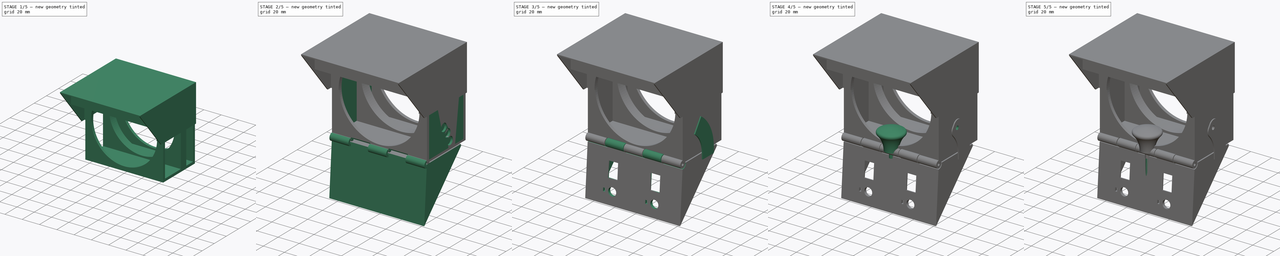
[diagram: build sequence overview — one tinted view per stage of 5, left to right]
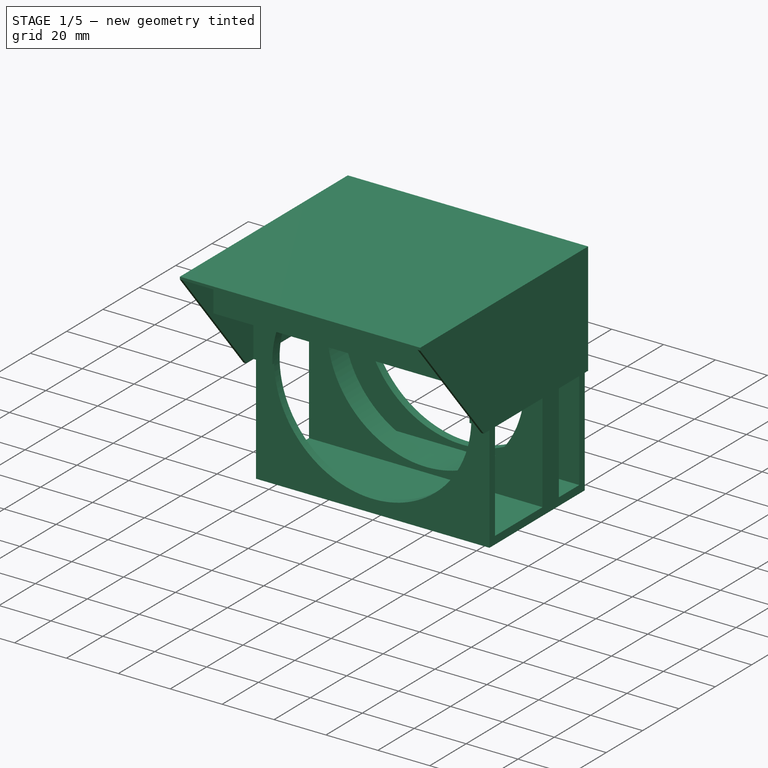
[diagram: stage 1 of 5 — iso view after this stage's code; geometry added in this stage tinted green]
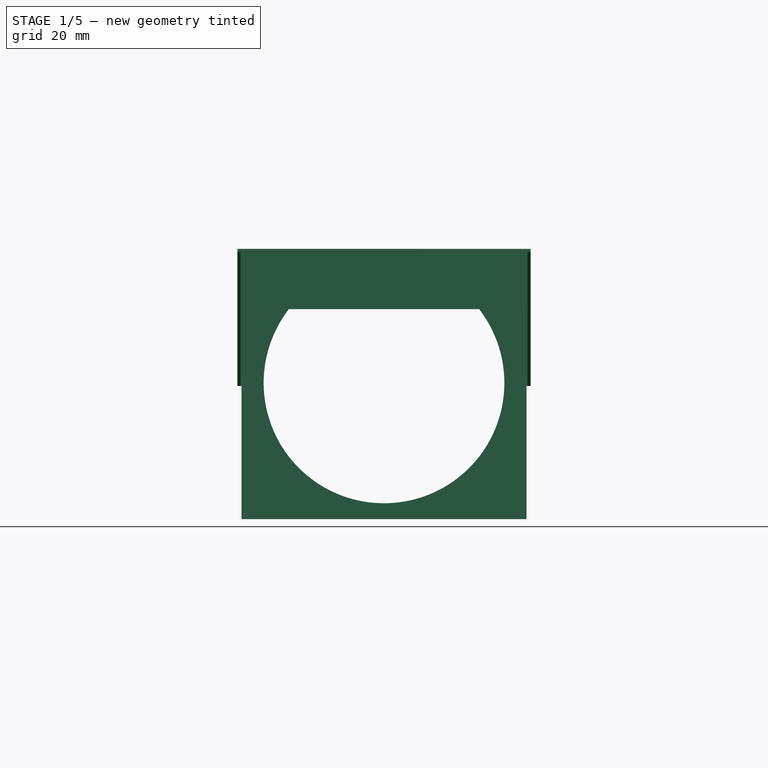
[diagram: stage 1 of 5 — front view after this stage's code; geometry added in this stage tinted green]
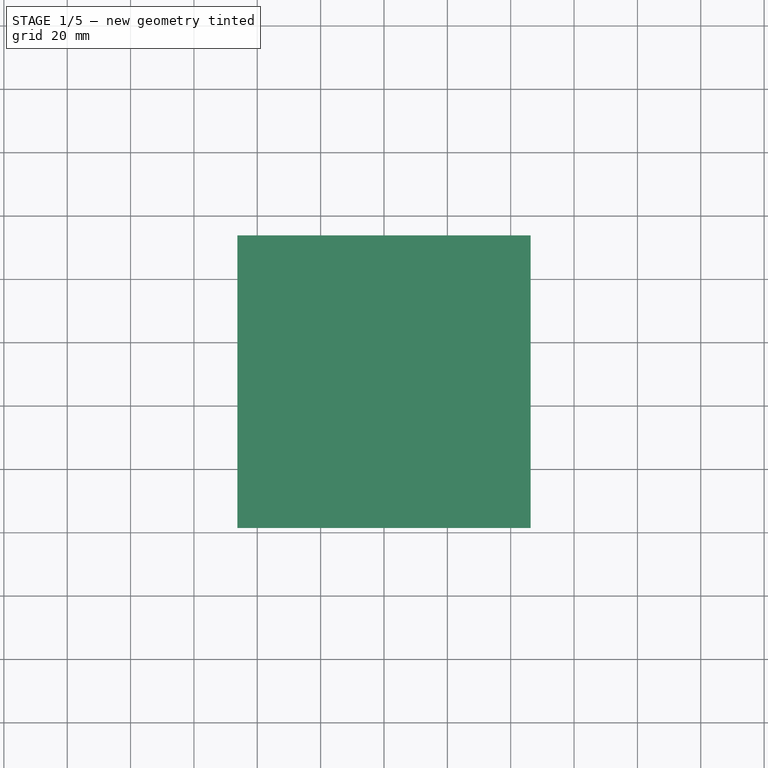
[diagram: stage 1 of 5 — top view after this stage's code; geometry added in this stage tinted green]
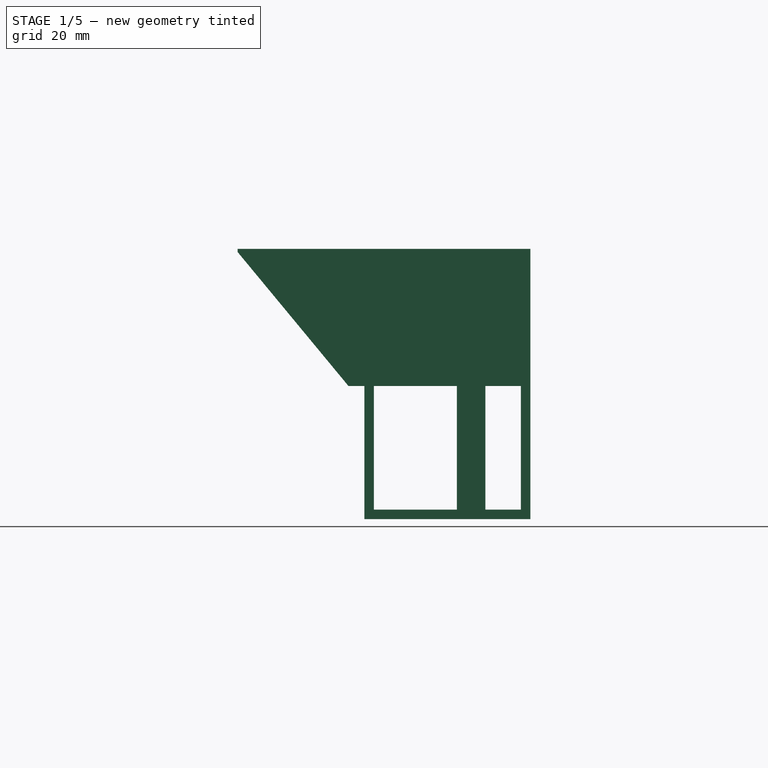
[diagram: stage 1 of 5 — right view after this stage's code; geometry added in this stage tinted green]
FCSTD DOCUMENT  (FreeCAD 0.20R29177 (Git))
Label: fanSupport035
License: Public Domain
LicenseURL: http://en.wikipedia.org/wiki/Public_domain
objects: Sketcher::SketchObject×48, App::Part×28, PartDesign::Pocket×24, Part::Feature×19, PartDesign::Pad×19, PartDesign::Body×10, Spreadsheet::Sheet×8, PartDesign::Plane×7, PartDesign::Chamfer×6, PartDesign::Groove×4, App::Link×4, PartDesign::Revolution×2, PartDesign::Fillet×2
note: 198 computed .brp shape members not serialized (recipe doc carries the construction recipe); baked Part::Feature solids carry a one-line shape summary decoded from their .brp
EXTERNAL_REF file=modelExternes/potar/potar.FCStd obj=Part
EXTERNAL_REF file=modelExternes/potar/potar.FCStd obj=Spreadsheet
EXTERNAL_REF file=modelExternes/switch15x10_003_0.FCStd obj=Spreadsheet
EXTERNAL_REF file=modelExternes/switch15x10_003_0.FCStd obj=Part

FEATURE [Spreadsheet::Sheet] Spreadsheet004  label="fanSupFixSp"
  cells = A1=larg; B1(larg)==<<fanSupMobSp>>.larg; C1=dépend de la partie mobile (fanSupMobSp); D1=Original name sp004; A2=epParois; B2(epParois)==<<fanSupMobSp>>.ep; C2=dépend de la partie mobile; A3=baseAngle; B3(baseAngle)=45; A4=frontAngle; B4(frontAngle)=86; A5=prof; B5(prof)=46; A6=petiteHaut; B6(petiteHaut)=2; A7=trouSupLarg; B7(trouSupLarg)=19; A8=trouSupLong; B8(trouSupLong)=25; A9=trouSupDist; B9(trouSupDist)=17; A10=cavitProf; B10(cavitProf)=46; A11=cavitBisAngle; B11(cavitBisAngle)=45; A12=cavitBisDistSup; B12(cavitBisDistSup)=11; A13=cavitBisDistInf; B13(cavitBisDistInf)=2; A14=cavitEpToit; B14(cavitEpToit)==epParois; A15=trouFixDiam; B15(trouFixDiam)=4; C15=insert; A16=troufixEntaxeLong; B16(troufixEntaxeLong)==cavitLarg + cavitEp; A17=trouFixEntraxeCourt; B17(trouFixEntraxeCourt)=25; A18=cavitLarg; B18(cavitLarg)==larg - cavitEp * 2; A19=cavitEp; B19(cavitEp)=10; A20=jeu; B20(jeu)=0.6; A21=billeDiam; B21(billeDiam)=5; A22=supportBilleLong; B22(supportBilleLong)==<<fanSupMobSp>>.piedEp / 2 + supportBilleDistPiedLame; C22=dépend de la partie mobile; D22=<<fanSupMob_sp>>.piedEp / 2 + supportBilleDistPiedLame + supportBilleLameEp; A23=supportBilleLameEp; B23(supportBilleLameEp)=1; A24=supportBilleLameLong; B24(supportBilleLameLong)=13; A25=supportBilleDistPiedLame; B25(supportBilleDistPiedLame)=1; A26=supportBilleProfilPetit; B26(supportBilleProfilPetit)=5; A27=lameBordSupAuCentreY; B27(lameBordSupAuCentreY)==30 * sin(15) - billeDiam / 2; A28=lameCentreBilleVert; B28(lameCentreBilleVert)==30 * sin(15); A29=languettePosX; B29(languettePosX)==larg / 2; A30=languettePosY; B30(languettePosY)==<<languetteSp>>.r1 + <<languetteSp>>.larg / 2 - <<languetteSp>>.fixeLarg / 2 - jeu / 2; A31=potarPosY; B31(potarPosY)=40; A32=potarPosX; B32(potarPosX)=20; C32=Symetrie et idem pour les switchs; A33=switchPosY; B33(switchPosY)=22
FEATURE [Spreadsheet::Sheet] Spreadsheet012  label="casquetteSp"
  cells = A1=sp12; A2=larg; B2(larg)==<<fanSupMobSp>>.larg; C2=dépend de fenSupMobSp; A3=haut; B3(haut)==<<fanSupMobSp>>.haut / 2; A4=ep; B4(ep)=1; A5=jeu; B5(jeu)=0.6; A6=long; B6(long)=40; A7=couvProf; B7(couvProf)==<<fanSupMobSp>>.prof; A8=petiteLong; B8(petiteLong)=5; A9=trousEntraxe; B9(trousEntraxe)==<<fan80mm_sp>>.trouEntraxe; C9=dépend de fan80Sp; A10=trousDiam; B10(trousDiam)==<<fan80mm_sp>>.trouDiam; A11=trousPosY; B11(trousPosY)==<<fanSupMobSp>>.ep + <<fan80mm_sp>>.larg / 2 - <<fan80mm_sp>>.trouEntraxe / 2 + <<fan80mm_sp>>.trouEntraxe; A12=paroiLedHaut; B12(paroiLedHaut)=18; A13=ParoiLEdDistBord; B13(ParoiLEdDistBord)=22; A14=trouDiamTeteDeVis; B14(trouDiamTeteDeVis)=6.5; A15=trouFillsLEDLarg; B15(trouFillsLEDLarg)=4; A16=trouFillsLEDHaut; B16(trouFillsLEDHaut)=6
FEATURE [Sketcher::SketchObject] Sketch047
  FullyConstrained = true
  MapMode = 5
  Placement = pos=(0,0,0) rot=(1,0,0;1.5708rad)
  Support = -> [XZ_Plane031]
  expr: Constraints[17] = <<casquetteSp>>.larg + <<casquetteSp>>.jeu
  expr: Constraints[18] = <<casquetteSp>>.haut + <<casquetteSp>>.jeu / 2
  expr: Constraints[19] = <<fanSupMobSp>>.haut - <<casquetteSp>>.haut
  expr: Constraints[20] = <<casquetteSp>>.ep
  expr: Constraints[21] = <<casquetteSp>>.ep
  expr: Constraints[22] = <<casquetteSp>>.ep
  sketch-geometry (8):
    g0: LineSegment StartX=-45.3 StartY=42 StartZ=0 EndX=-46.3 EndY=42 EndZ=0
    g1: LineSegment StartX=-46.3 StartY=42 StartZ=0 EndX=-46.3 EndY=85.3 EndZ=0
    g2: LineSegment StartX=-46.3 StartY=85.3 StartZ=0 EndX=46.3 EndY=85.3 EndZ=0
    g3: LineSegment StartX=46.3 StartY=85.3 StartZ=0 EndX=46.3 EndY=42 EndZ=0
    g4: LineSegment StartX=46.3 StartY=42 StartZ=0 EndX=45.3 EndY=42 EndZ=0
    g5: LineSegment StartX=45.3 StartY=42 StartZ=0 EndX=45.3 EndY=84.3 EndZ=0
    g6: LineSegment StartX=45.3 StartY=84.3 StartZ=0 EndX=-45.3 EndY=84.3 EndZ=0
    g7: LineSegment StartX=-45.3 StartY=84.3 StartZ=0 EndX=-45.3 EndY=42 EndZ=0
  constraints (23):
    c: Horizontal(g0)
    c: Coincident(g0,g1)
    c: Vertical(g1)
    c: Coincident(g1,g2)
    c: Horizontal(g2)
    c: Coincident(g2,g3)
    c: Vertical(g3)
    c: Coincident(g3,g4)
    c: Horizontal(g4)
    c: Coincident(g4,g5)
    c: Vertical(g5)
    c: Coincident(g5,g6)
    c: Horizontal(g6)
    c: Coincident(g6,g7)
    c: Coincident(g7,g0)
    c: Vertical(g7)
    c: Symmetric(g0,g4,g-2)
    c: DistanceX(g6,g6) = 90.6
    c: DistanceY(g5,g5) = 42.3
    c: DistanceY(g-1,g4) = 42
    c: DistanceX(g4,g4) = 1
    c: DistanceX(g0,g0) = 1
    c: DistanceY(g5,g2) = 1
FEATURE [PartDesign::Pad] Pad027  label="casquette001"
  Direction = (0,-1,-2e-16)
  Length = 40
  Length2 = 100
  Placement = pos=(0,0,0) rot=(1,0,0;1.5708rad)
  Profile = -> Sketch047
  Type = 0
  expr: Length = <<casquetteSp>>.long
FEATURE [PartDesign::Pad] Pad028  label="couvertureVentiloEtFiltre"
  BaseFeature = -> Pad027
  Direction = (0,-1,-2e-16)
  Length = 52.4
  Length2 = 100
  Placement = pos=(0,0,0) rot=(1,0,0;1.5708rad)
  Profile = -> Sketch047
  Reversed = true
  Type = 0
  expr: Length = <<casquetteSp>>.couvProf
FEATURE [Sketcher::SketchObject] Sketch048
  FullyConstrained = true
  MapMode = 5
  Placement = pos=(0,0,0) rot=(1,0,0;1.5708rad)
  Support = -> [XZ_Plane031]
  expr: Constraints[10] = <<casquetteSp>>.haut + <<casquetteSp>>.jeu / 2
  expr: Constraints[7] = <<fanSupMobSp>>.haut - <<casquetteSp>>.haut
  expr: Constraints[9] = <<casquetteSp>>.larg + <<casquetteSp>>.jeu
  sketch-geometry (4):
    g0: LineSegment StartX=-45.3 StartY=84.3 StartZ=0 EndX=45.3 EndY=84.3 EndZ=0
    g1: LineSegment StartX=45.3 StartY=84.3 StartZ=0 EndX=45.3 EndY=42 EndZ=0
    g2: LineSegment StartX=45.3 StartY=42 StartZ=0 EndX=-45.3 EndY=42 EndZ=0
    g3: LineSegment StartX=-45.3 StartY=42 StartZ=0 EndX=-45.3 EndY=84.3 EndZ=0
  constraints (11):
    c: Coincident(g0,g1)
    c: Coincident(g1,g2)
    c: Coincident(g2,g3)
    c: Coincident(g3,g0)
    c: Horizontal(g0)
    c: Vertical(g1)
    c: Vertical(g3)
    c: DistanceY(g-1,g1) = 42
    c: Symmetric(g2,g1,g-2)
    c: DistanceX(g0,g0) = 90.6
    c: DistanceY(g1,g1) = 42.3
FEATURE [PartDesign::Pad] Pad029  label="plaque"
  BaseFeature = -> Pad028
  Direction = (0,-1,-2e-16)
  Length = 1
  Length2 = 100
  Placement = pos=(0,0,0) rot=(1,0,0;1.5708rad)
  Profile = -> Sketch048
  Type = 0
  expr: Length = <<casquetteSp>>.ep
FEATURE [Sketcher::SketchObject] Sketch049
  FullyConstrained = true
  MapMode = 5
  Placement = pos=(0,0,0) rot=(1,0,0;1.5708rad)
  Support = -> [XZ_Plane031]
  expr: Constraints[1] = <<fanSupMobSp>>.ep + <<fan80mm_sp>>.trouFan / 2 + <<fan80mm_sp>>.caseEp
  expr: Constraints[2] = <<fan80mm_sp>>.trouFan
  sketch-geometry (1):
    g0: Circle CenterX=0 CenterY=43 CenterZ=0 NormalX=0 NormalY=0 NormalZ=1 AngleXU=0 Radius=38
  constraints (3):
    c: PointOnObject(g0,g-2)
    c: DistanceY(g-1,g0) = 43
    c: Diameter(g0) = 76
FEATURE [PartDesign::Pocket] Pocket015  label="trouVentilo"
  BaseFeature = -> Pad029
  Direction = (0,1,2e-16)
  Length = 1
  Length2 = 100
  Placement = pos=(0,0,0) rot=(1,0,0;1.5708rad)
  Profile = -> Sketch049
  Reversed = true
  Type = 0
  expr: Length = <<casquetteSp>>.ep
FEATURE [Sketcher::SketchObject] Sketch050
  FullyConstrained = true
  MapMode = 5
  Placement = pos=(0,0,0) rot=(0.57735,0.57735,0.57735;2.0944rad)
  Support = -> [YZ_Plane031]
  expr: Constraints[5] = <<fanSupMobSp>>.haut - <<casquetteSp>>.haut
  expr: Constraints[6] = <<casquetteSp>>.haut + <<casquetteSp>>.jeu / 2
  expr: Constraints[7] = <<casquetteSp>>.petiteLong
  expr: Constraints[8] = <<casquetteSp>>.long - <<casquetteSp>>.petiteLong
  sketch-geometry (3):
    g0: LineSegment StartX=-5 StartY=42 StartZ=0 EndX=-40 EndY=84.3 EndZ=0
    g1: LineSegment StartX=-40 StartY=84.3 StartZ=0 EndX=-40 EndY=42 EndZ=0
    g2: LineSegment StartX=-40 StartY=42 StartZ=0 EndX=-5 EndY=42 EndZ=0
  constraints (9):
    c: Coincident(g0,g1)
    c: Vertical(g1)
    c: Coincident(g1,g2)
    c: Coincident(g2,g0)
    c: Horizontal(g2)
    c: DistanceY(g-1,g0) = 42
    c: DistanceY(g1,g1) = 42.3
    c: DistanceX(g0,g-1) = 5
    c: DistanceX(g2,g2) = 35
FEATURE [PartDesign::Pocket] Pocket016  label="bordInclines"
  BaseFeature = -> Pocket015
  Direction = (-1,2e-16,-3e-16)
  Length = 92.6
  Length2 = 100
  Midplane = true
  Placement = pos=(0,0,0) rot=(1,0,0;1.5708rad)
  Profile = -> Sketch050
  Type = 0
  expr: Length = <<casquetteSp>>.larg + <<casquetteSp>>.ep * 2 + <<casquetteSp>>.jeu
FEATURE [Sketcher::SketchObject] Sketch051
  FullyConstrained = true
  MapMode = 5
  Placement = pos=(0,0,0) rot=(1,0,0;1.5708rad)
  Support = -> [XZ_Plane031]
  expr: Constraints[4] = <<casquetteSp>>.trousDiam
  expr: Constraints[5] = <<casquetteSp>>.trousEntraxe
  expr: Constraints[6] = <<casquetteSp>>.trousPosY
  sketch-geometry (3):
    g0: Circle CenterX=-35.75 CenterY=78.75 CenterZ=0 NormalX=0 NormalY=0 NormalZ=1 AngleXU=0 Radius=2.15
    g1: Circle CenterX=35.75 CenterY=78.75 CenterZ=0 NormalX=0 NormalY=0 NormalZ=1 AngleXU=0 Radius=2.15
    g2: LineSegment StartX=-35.75 StartY=78.75 StartZ=0 EndX=35.75 EndY=78.75 EndZ=0
  constraints (7):
    c: Coincident(g2,g0)
    c: Coincident(g2,g1)
    c: Symmetric(g0,g1,g-2)
    c: Equal(g1,g0)
    c: Diameter(g1) = 4.3
    c: DistanceX(g2,g2) = 71.5
    c: DistanceY(g-1,g0) = 78.75
FEATURE [PartDesign::Pocket] Pocket017  label="trousFixations"
  BaseFeature = -> Pocket016
  Direction = (0,1,2e-16)
  Length = 1
  Length2 = 100
  Placement = pos=(0,0,0) rot=(1,0,0;1.5708rad)
  Profile = -> Sketch051
  Reversed = true
  Type = 0
  expr: Length = <<casquetteSp>>.ep
FEATURE [Part::Feature] Part__Feature  label="SOLID"
  shape: bbox 7.8 x 21.31 x 14.1 mm, 16 faces (baked)
FEATURE [App::Part] LED_D5_0mm  label="LED_D5.0mm"
  Group = -> [Part__Feature]
  Origin = -> Origin039
  Placement = pos=(-13.97,5.08,1.65) rot=(0,0,1;3.14159rad)
FEATURE [Part::Feature] Part__Feature001  label="SOLID001"
  shape: bbox 7.8 x 21.31 x 14.1 mm, 16 faces (baked)
FEATURE [App::Part] LED_D5_0mm001  label="LED_D5.0mm001"
  Group = -> [Part__Feature001]
  Origin = -> Origin040
  Placement = pos=(-21.59,-5.08,1.65) rot=(0,0,1;3.14159rad)
FEATURE [Part::Feature] Part__Feature002  label="SOLID002"
  shape: bbox 7.8 x 21.31 x 14.1 mm, 16 faces (baked)
FEATURE [App::Part] LED_D5_0mm002  label="LED_D5.0mm002"
  Group = -> [Part__Feature002]
  Origin = -> Origin041
  Placement = pos=(-6.35,5.08,1.65) rot=(0,0,1;3.14159rad)
FEATURE [Part::Feature] Part__Feature003  label="SOLID003"
  shape: bbox 7.8 x 21.31 x 14.1 mm, 16 faces (baked)
FEATURE [App::Part] LED_D5_0mm003  label="LED_D5.0mm003"
  Group = -> [Part__Feature003]
  Origin = -> Origin042
  Placement = pos=(-29.21,-5.08,1.65) rot=(0,0,1;3.14159rad)
FEATURE [Part::Feature] Part__Feature004  label="SOLID004"
  shape: bbox 7.8 x 21.31 x 14.1 mm, 16 faces (baked)
FEATURE [App::Part] LED_D5_0mm004  label="LED_D5.0mm004"
  Group = -> [Part__Feature004]
  Origin = -> Origin043
  Placement = pos=(-29.21,5.08,1.65) rot=(0,0,1;3.14159rad)
FEATURE [Part::Feature] Part__Feature005  label="SOLID005"
  shape: bbox 7.8 x 21.31 x 14.1 mm, 16 faces (baked)
FEATURE [App::Part] LED_D5_0mm005  label="LED_D5.0mm005"
  Group = -> [Part__Feature005]
  Origin = -> Origin044
  Placement = pos=(16.51,-5.08,1.65) rot=(0,0,1;3.14159rad)
FEATURE [Part::Feature] Part__Feature006  label="SOLID006"
  shape: bbox 7.8 x 21.31 x 14.1 mm, 16 faces (baked)
FEATURE [App::Part] LED_D5_0mm006  label="LED_D5.0mm006"
  Group = -> [Part__Feature006]
  Origin = -> Origin045
  Placement = pos=(-13.97,-5.08,1.65) rot=(0,0,1;3.14159rad)
FEATURE [Part::Feature] Part__Feature007  label="SOLID007"
  shape: bbox 7.8 x 21.31 x 14.1 mm, 16 faces (baked)
FEATURE [App::Part] LED_D5_0mm007  label="LED_D5.0mm007"
  Group = -> [Part__Feature007]
  Origin = -> Origin046
  Placement = pos=(31.75,-5.08,1.65) rot=(0,0,1;3.14159rad)
FEATURE [Part::Feature] Part__Feature008  label="SOLID008"
  shape: bbox 7.8 x 21.31 x 14.1 mm, 16 faces (baked)
FEATURE [App::Part] LED_D5_0mm008  label="LED_D5.0mm008"
  Group = -> [Part__Feature008]
  Origin = -> Origin047
  Placement = pos=(8.89,-5.08,1.65) rot=(0,0,1;3.14159rad)
FEATURE [Part::Feature] Part__Feature009  label="SOLID009"
  shape: bbox 7.8 x 21.31 x 14.1 mm, 16 faces (baked)
FEATURE [App::Part] LED_D5_0mm009  label="LED_D5.0mm009"
  Group = -> [Part__Feature009]
  Origin = -> Origin048
  Placement = pos=(24.13,-5.08,1.65) rot=(0,0,1;3.14159rad)
FEATURE [Part::Feature] Part__Feature010  label="SOLID010"
  shape: bbox 7.8 x 21.31 x 14.1 mm, 16 faces (baked)
FEATURE [App::Part] LED_D5_0mm010  label="LED_D5.0mm010"
  Group = -> [Part__Feature010]
  Origin = -> Origin049
  Placement = pos=(-6.35,-5.08,1.65) rot=(0,0,1;3.14159rad)
FEATURE [Part::Feature] Part__Feature011  label="SOLID011"
  shape: bbox 7.8 x 21.31 x 14.1 mm, 16 faces (baked)
FEATURE [App::Part] LED_D5_0mm011  label="LED_D5.0mm011"
  Group = -> [Part__Feature011]
  Origin = -> Origin050
  Placement = pos=(-21.59,5.08,1.65) rot=(0,0,1;3.14159rad)
FEATURE [Part::Feature] Part__Feature012  label="SOLID012"
  shape: bbox 7.8 x 21.31 x 14.1 mm, 16 faces (baked)
FEATURE [App::Part] LED_D5_0mm012  label="LED_D5.0mm012"
  Group = -> [Part__Feature012]
  Origin = -> Origin051
  Placement = pos=(24.13,5.08,1.65) rot=(0,0,1;3.14159rad)
FEATURE [Part::Feature] Part__Feature013  label="SOLID013"
  shape: bbox 7.8 x 21.31 x 14.1 mm, 16 faces (baked)
FEATURE [App::Part] LED_D5_0mm013  label="LED_D5.0mm013"
  Group = -> [Part__Feature013]
  Origin = -> Origin052
  Placement = pos=(16.51,5.08,1.65) rot=(0,0,1;3.14159rad)
FEATURE [Part::Feature] Part__Feature014  label="SOLID014"
  shape: bbox 10.36 x 5.08 x 5.54 mm, 58 faces (baked)
FEATURE [App::Part] PinHeader_1x02_P2_54mm_Horizontal  label="PinHeader_1x02_P2.54mm_Horizontal"
  Group = -> [Part__Feature014]
  Origin = -> Origin053
  Placement = pos=(41.91,-5.08,1.65) rot=(0,0,1;0rad)
FEATURE [Part::Feature] Part__Feature015  label="SOLID015"
  shape: bbox 7.8 x 21.31 x 14.1 mm, 16 faces (baked)
FEATURE [App::Part] LED_D5_0mm014  label="LED_D5.0mm014"
  Group = -> [Part__Feature015]
  Origin = -> Origin054
  Placement = pos=(8.89,5.08,1.65) rot=(0,0,1;3.14159rad)
FEATURE [Part::Feature] Part__Feature016  label="SOLID016"
  shape: bbox 7.8 x 21.31 x 14.1 mm, 16 faces (baked)
FEATURE [App::Part] LED_D5_0mm015  label="LED_D5.0mm015"
  Group = -> [Part__Feature016]
  Origin = -> Origin055
  Placement = pos=(31.75,5.08,1.65) rot=(0,0,1;3.14159rad)
FEATURE [Part::Feature] Part__Feature017  label="_autosave-ventilo PCB"
  shape: bbox 88.9 x 20.32 x 1.6 mm, 40 faces (baked)
FEATURE [App::Part] ventilo_1  label="leds"
  Group = -> [LED_D5_0mm,LED_D5_0mm001,LED_D5_0mm002,LED_D5_0mm003,LED_D5_0mm004,LED_D5_0mm005,LED_D5_0mm006,LED_D5_0mm007,LED_D5_0mm008,LED_D5_0mm009,LED_D5_0mm010,LED_D5_0mm011,LED_D5_0mm012,LED_D5_0mm013,PinHeader_1x02_P2_54mm_Horizontal,LED_D5_0mm014,LED_D5_0mm015,Part__Feature017]
  Origin = -> Origin056
  Placement = pos=(0,-11,83) rot=(1,0,0;3.14159rad)
FEATURE [Sketcher::SketchObject] Sketch063
  ExternalGeometry = -> [Pocket017]
  FullyConstrained = true
  MapMode = 5
  Placement = pos=(0,1.87e-14,84.3) rot=(1,0,0;3.14159rad)
  Support = -> [Pocket017]
  expr: Constraints[10] = <<casquetteSp>>.ep
  expr: Constraints[11] = <<casquetteSp>>.ParoiLEdDistBord
  sketch-geometry (4):
    g0: LineSegment StartX=-45.3 StartY=23 StartZ=0 EndX=45.3 EndY=23 EndZ=0
    g1: LineSegment StartX=45.3 StartY=23 StartZ=0 EndX=45.3 EndY=22 EndZ=0
    g2: LineSegment StartX=45.3 StartY=22 StartZ=0 EndX=-45.3 EndY=22 EndZ=0
    g3: LineSegment StartX=-45.3 StartY=22 StartZ=0 EndX=-45.3 EndY=23 EndZ=0
  constraints (12):
    c: Coincident(g0,g1)
    c: Coincident(g1,g2)
    c: Coincident(g2,g3)
    c: Coincident(g3,g0)
    c: Horizontal(g0)
    c: Horizontal(g2)
    c: Vertical(g1)
    c: Vertical(g3)
    c: PointOnObject(g0,g-3)
    c: PointOnObject(g1,g-4)
    c: DistanceY(g1,g0) = 1
    c: DistanceY(g-1,g1) = 22
FEATURE [PartDesign::Pad] Pad033  label="paroiLed"
  BaseFeature = -> Pocket017
  Direction = (0,2e-16,-1)
  Length = 18
  Length2 = 100
  Placement = pos=(0,0,0) rot=(1,0,0;1.5708rad)
  Profile = -> Sketch063
  Type = 0
FEATURE [PartDesign::Body] Body006  label="fanSupFixBdy"
  Group = -> [Sketch022,Pad012,Sketch023,Pad013,Sketch024,Groove003,Sketch025,Pocket006,Sketch026,Pocket007,Sketch027,Pocket008,Sketch060,Pocket020,DatumPlane004,Sketch066,Pocket025,Sketch067,Pocket026,DatumPlane005,Sketch068,Pocket027]
  Origin = -> Origin012
  Tip = -> Pocket027
FEATURE [App::Part] Part005  label="fanSupFixe"
  Group = -> [Body006,Spreadsheet004,Link,Link001,Link002,Link003,Part016,Part017,Part018]
  Origin = -> Origin011
FEATURE [Sketcher::SketchObject] Sketch069
  FullyConstrained = true
  MapMode = 5
  Placement = pos=(0,-23,5.1e-15) rot=(1,0,0;1.5708rad)
  Support = -> [Pad033]
  expr: Constraints[2] = <<casquetteSp>>.trousEntraxe
  expr: Constraints[3] = <<casquetteSp>>.trousPosY
  expr: Constraints[4] = <<casquetteSp>>.trouDiamTeteDeVis
  sketch-geometry (2):
    g0: Circle CenterX=-35.75 CenterY=78.75 CenterZ=0 NormalX=0 NormalY=0 NormalZ=1 AngleXU=0 Radius=3.25
    g1: Circle CenterX=35.75 CenterY=78.75 CenterZ=0 NormalX=0 NormalY=0 NormalZ=1 AngleXU=0 Radius=3.25
  constraints (5):
    c: Equal(g0,g1)
    c: Symmetric(g0,g1,g-2)
    c: DistanceX(g0,g1) = 71.5
    c: DistanceY(g-1,g1) = 78.75
    c: Diameter(g0) = 6.5
FEATURE [PartDesign::Pocket] Pocket028  label="trousTetesVis"
  BaseFeature = -> Pad033
  Direction = (0,1,2e-16)
  Length = 1
  Length2 = 100
  Placement = pos=(0,0,0) rot=(1,0,0;1.5708rad)
  Profile = -> Sketch069
  Type = 0
  expr: Length = <<casquetteSp>>.ep
FEATURE [PartDesign::Body] Body  label="fanSupMobileBdy"
  Group = -> [Sketch,Pad,Sketch001,Pocket,DatumPlane,Sketch005,Pocket001,DatumPlane003,Sketch013,Pad006,Sketch014,Pad007,Sketch015,Pad008,Sketch016,Pocket005,Sketch017,Groove001,Sketch061,Pocket021,Sketch062,Pocket022,Sketch064,Pocket023,Sketch065,Pocket024,DatumPlane006,Sketch070,Pocket029]
  Origin = -> Origin001
  Tip = -> Pocket029
FEATURE [Sketcher::SketchObject] Sketch071
  FullyConstrained = true
  MapMode = 5
  Placement = pos=(0,0,0) rot=(1,0,0;1.5708rad)
  Support = -> [XZ_Plane031]
  expr: Constraints[10] = Spreadsheet012.trouFillsLEDLarg
  expr: Constraints[11] = <<casquetteSp>>.trouFillsLEDHaut
  expr: Constraints[8] = <<casquetteSp>>.larg / 2 + <<casquetteSp>>.jeu / 2
  expr: Constraints[9] = 2 * <<casquetteSp>>.haut + <<casquetteSp>>.jeu / 2
  sketch-geometry (4):
    g0: LineSegment StartX=45.3 StartY=84.3 StartZ=0 EndX=41.3 EndY=84.3 EndZ=0
    g1: LineSegment StartX=41.3 StartY=84.3 StartZ=0 EndX=41.3 EndY=78.3 EndZ=0
    g2: LineSegment StartX=41.3 StartY=78.3 StartZ=0 EndX=45.3 EndY=78.3 EndZ=0
    g3: LineSegment StartX=45.3 StartY=78.3 StartZ=0 EndX=45.3 EndY=84.3 EndZ=0
  constraints (12):
    c: Coincident(g0,g1)
    c: Coincident(g1,g2)
    c: Coincident(g2,g3)
    c: Coincident(g3,g0)
    c: Horizontal(g0)
    c: Horizontal(g2)
    c: Vertical(g1)
    c: Vertical(g3)
    c: DistanceX(g-1,g0) = 45.3
    c: DistanceY(g-1,g0) = 84.3
    c: DistanceX(g1,g2) = 4
    c: DistanceY(g1,g0) = 6
FEATURE [PartDesign::Pocket] Pocket030  label="trousLeds"
  BaseFeature = -> Pocket028
  Direction = (0,1,2e-16)
  Length = 1
  Length2 = 5
  Placement = pos=(0,0,0) rot=(1,0,0;1.5708rad)
  Profile = -> Sketch071
  ReferenceAxis = -> Sketch071 [N_Axis]
  Reversed = true
  Type = 0
  expr: Length = <<casquetteSp>>.ep
FEATURE [PartDesign::Body] Body016  label="casquetteBdy"
  Group = -> [Sketch047,Pad027,Pad028,Sketch048,Pad029,Sketch049,Pocket015,Sketch050,Pocket016,Sketch051,Pocket017,Sketch063,Pad033,Sketch069,Pocket028,Sketch071,Pocket030]
  Origin = -> Origin032
  Tip = -> Pocket030
FEATURE [App::Part] Part015  label="casquette"
  Group = -> [Body016,Spreadsheet012]
  Origin = -> Origin031
FEATURE [App::Part] Part  label="fansupMobile"
  Group = -> [Body,Part002,Body002,Body003,Part004,Part001,Spreadsheet,ventilo_1,Part015]
  Origin = -> Origin
FEATURE [App::Part] Part003  label="fanSubstem"
  Group = -> [Part,Part005,Spreadsheet014]
  Origin = -> Origin007

RESOLVED EXTERNAL PARTS (link-assembly join: the EXTERNAL_REF files above that resolve inside this repo's crawl, each included once):
---- part modelExternes/switch15x10_003_0.FCStd = doc fcstd_a9b8f1ed61af ----
FCSTD DOCUMENT  (FreeCAD 0.19R24267 +148 (Git))
Label: switch15x10_003_0
License: All rights reserved
LicenseURL: http://en.wikipedia.org/wiki/All_rights_reserved
objects: Sketcher::SketchObject×5, PartDesign::Pad×4, PartDesign::Chamfer×2, Spreadsheet::Sheet×1, PartDesign::Fillet×1, PartDesign::Plane×1, PartDesign::Pocket×1, PartDesign::Body×1, App::Part×1
note: 23 computed .brp shape members not serialized (recipe doc carries the construction recipe); baked Part::Feature solids carry a one-line shape summary decoded from their .brp

FEATURE [Spreadsheet::Sheet] Spreadsheet  label="sw15x10Sp"
  cells = A1=KCD1-11 AMAZON ; A2=larg; B2(larg)=8.199999999999999; A3=long; B3(long)=13; A4=haut; B4(haut)=8.300000000000001; A5=jeu; B5(jeu)=0.6; A6=cosseLarg; B6(cosseLarg)=3.7; A7=cosseHaut; B7(cosseHaut)=6.65; A8=cosseEp; B8(cosseEp)=0.33; A9=cosseTrouLong; B9(cosseTrouLong)=2.5; A10=cosseTrouLar; B10(cosseTrouLar)=1; A11=cosseTrouDistSom; B11(cosseTrouDistSom)=1.19; A12=cosseEntraxe; B12(cosseEntraxe)=4.6; A13=cosseDistBord; B13(cosseDistBord)=2.3; A14=trouLong; B14(trouLong)=14.5; C14=A tester; A15=trouLarg; B15(trouLarg)==larg + jeu; A16=levreEp; B16(levreEp)=1.4; A17=LevreLarg; B17(LevreLarg)=10.5; A18=levreLong; B18(levreLong)=15.1
FEATURE [Sketcher::SketchObject] Sketch
  FullyConstrained = true
  MapMode = 5
  Support = -> [XY_Plane001]
  expr: Constraints[10] = <<sw15x10Sp>>.larg
  expr: Constraints[9] = <<sw15x10Sp>>.long
  sketch-geometry (4):
    g0: LineSegment StartX=-6.5 StartY=4.1 StartZ=0 EndX=6.5 EndY=4.1 EndZ=0
    g1: LineSegment StartX=6.5 StartY=4.1 StartZ=0 EndX=6.5 EndY=-4.1 EndZ=0
    g2: LineSegment StartX=6.5 StartY=-4.1 StartZ=0 EndX=-6.5 EndY=-4.1 EndZ=0
    g3: LineSegment StartX=-6.5 StartY=-4.1 StartZ=0 EndX=-6.5 EndY=4.1 EndZ=0
  constraints (11):
    c: Coincident(g0,g1)
    c: Coincident(g1,g2)
    c: Coincident(g2,g3)
    c: Coincident(g3,g0)
    c: Horizontal(g0)
    c: Horizontal(g2)
    c: Vertical(g1)
    c: Vertical(g3)
    c: Symmetric(g0,g1,g-1)
    c: DistanceX(g0,g0) = 13
    c: DistanceY(g1,g1) = 8.2
FEATURE [PartDesign::Pad] Pad  label="corp"
  Direction = (1,1,1)
  Length = 8.3
  Length2 = 100
  Profile = -> Sketch
  Reversed = true
  Type = 0
  expr: Length = <<sw15x10Sp>>.haut
FEATURE [Sketcher::SketchObject] Sketch004
  FullyConstrained = true
  MapMode = 5
  Placement = pos=(4.2,0,0) rot=(0.57735,0.57735,0.57735;2.0944rad)
  Support = -> [Chamfer001]
  expr: Constraints[10] = <<sw15x10Sp>>.haut + <<sw15x10Sp>>.cosseHaut - <<sw15x10Sp>>.cosseTrouLong - <<sw15x10Sp>>.cosseTrouDistSom
  expr: Constraints[9] = <<sw15x10Sp>>.cosseTrouLong
  expr: Constraints[8] = <<sw15x10Sp>>.cosseTrouLar
  sketch-geometry (4):
    g0: LineSegment StartX=-0.5 StartY=-11.26 StartZ=0 EndX=0.5 EndY=-11.26 EndZ=0
    g1: LineSegment StartX=0.5 StartY=-11.26 StartZ=0 EndX=0.5 EndY=-13.76 EndZ=0
    g2: LineSegment StartX=0.5 StartY=-13.76 StartZ=0 EndX=-0.5 EndY=-13.76 EndZ=0
    g3: LineSegment StartX=-0.5 StartY=-13.76 StartZ=0 EndX=-0.5 EndY=-11.26 EndZ=0
  constraints (11):
    c: Coincident(g0,g1)
    c: Coincident(g1,g2)
    c: Coincident(g2,g3)
    c: Coincident(g3,g0)
    c: Horizontal(g0)
    c: Vertical(g1)
    c: Vertical(g3)
    c: Symmetric(g2,g1,g-2)
    c: DistanceX(g2,g2) = 1
    c: DistanceY(g1,g1) = 2.5
    c: DistanceY(g0,g-1) = 11.26
FEATURE [PartDesign::Pocket] Pocket
  BaseFeature = -> Chamfer001
  Length = 5
  Length2 = 100
  Profile = -> Sketch004
  Type = 1
FEATURE [PartDesign::Body] Body  label="sw15x10Bdy"
  Group = -> [Sketch,Pad,Sketch001,Pad001,Chamfer,Sketch002,Pad002,Fillet,DatumPlane,Sketch003,Pad003,Chamfer001,Sketch004,Pocket]
  Origin = -> Origin001
  Tip = -> Pocket
FEATURE [App::Part] Part  label="sw15x10Prt"
  Group = -> [Body,Spreadsheet]
  Origin = -> Origin
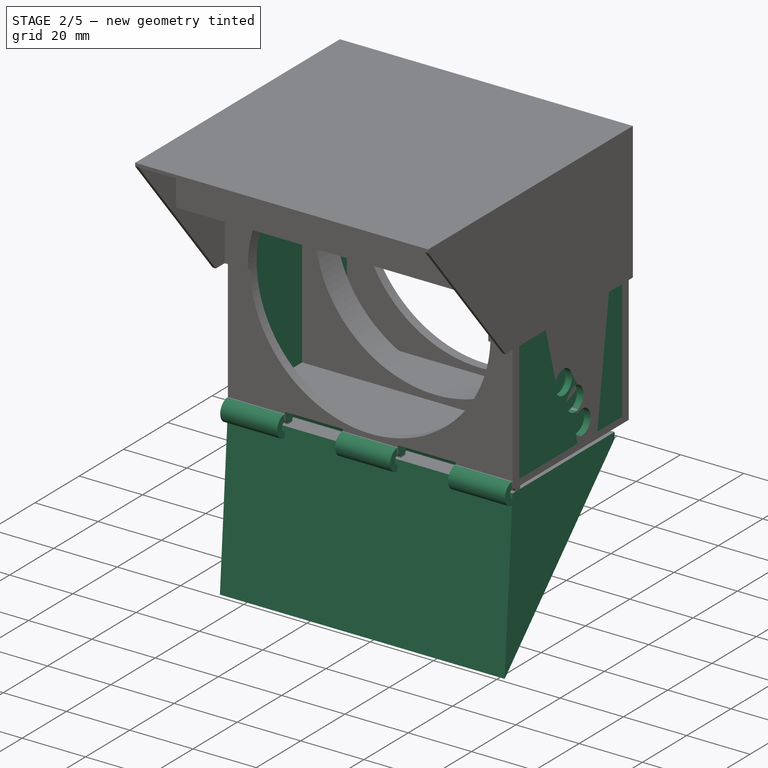
[diagram: stage 2 of 5 — iso view after this stage's code; geometry added in this stage tinted green]
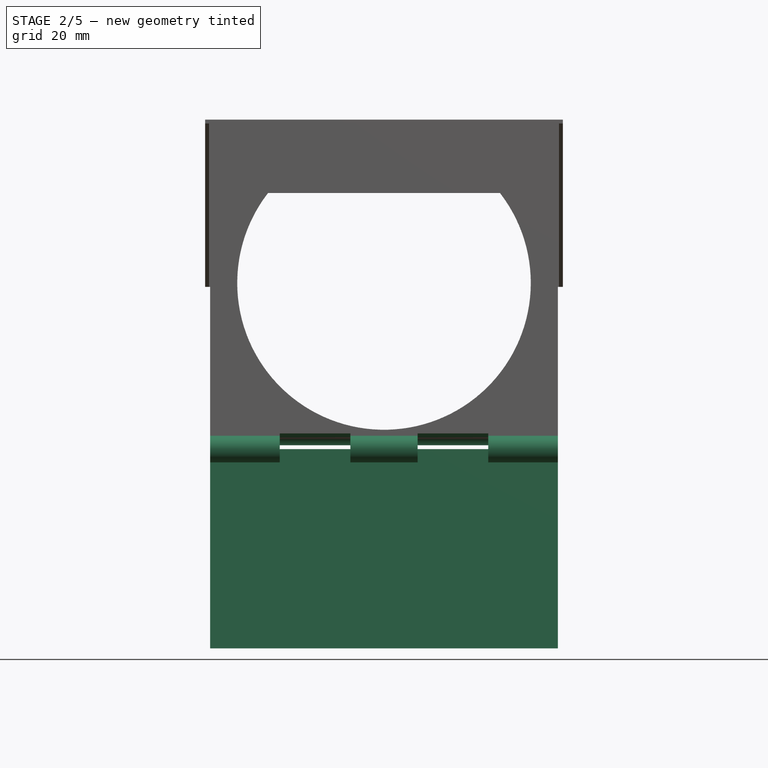
[diagram: stage 2 of 5 — front view after this stage's code; geometry added in this stage tinted green]
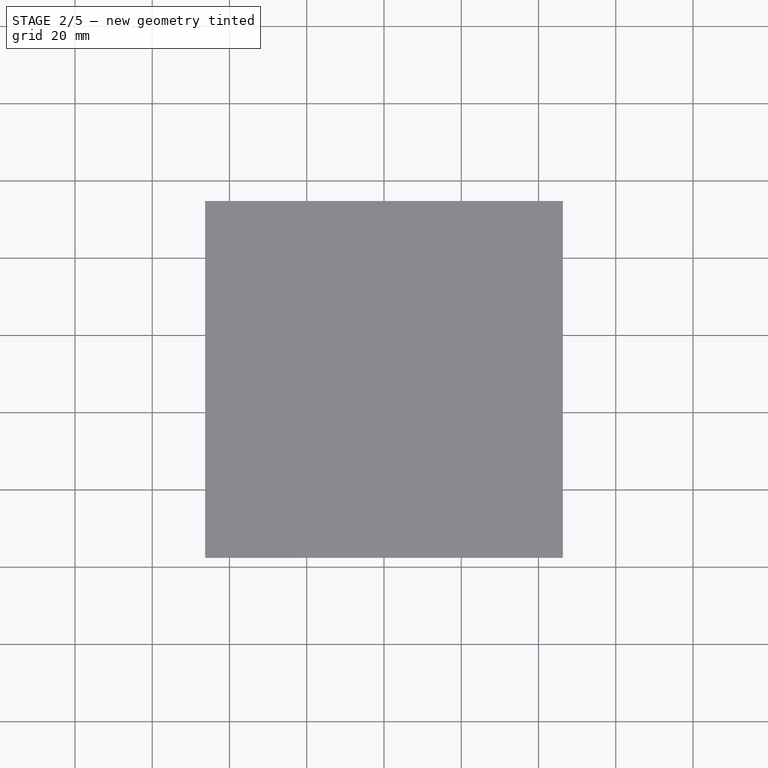
[diagram: stage 2 of 5 — top view after this stage's code; geometry added in this stage tinted green]
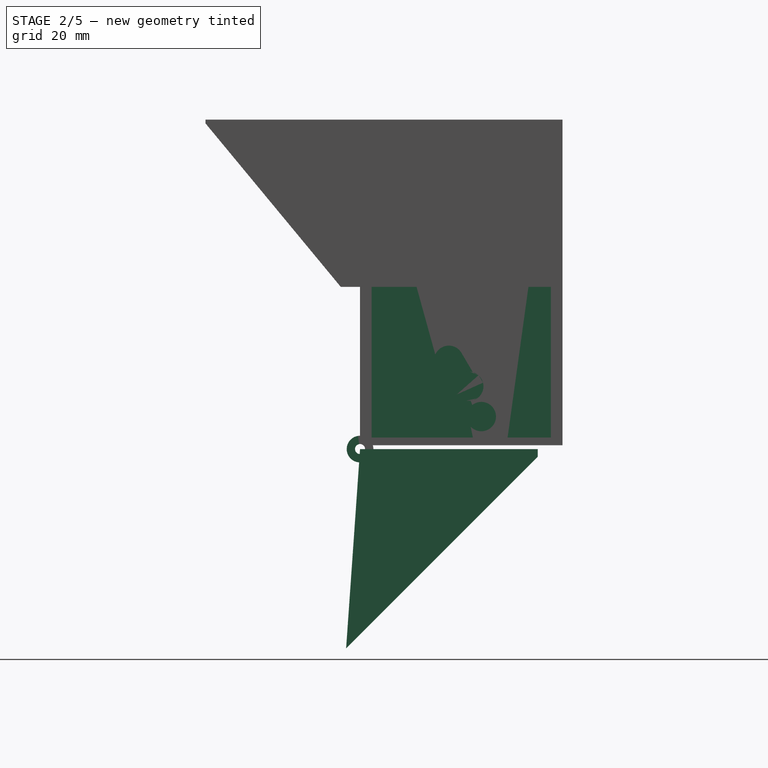
[diagram: stage 2 of 5 — right view after this stage's code; geometry added in this stage tinted green]
FEATURE [PartDesign::Chamfer] Chamfer
  Angle = 45
  Base = -> Groove [Edge37,Edge26]
  BaseFeature = -> Groove
  ChamferType = 0
  FlipDirection = false
  Size = 0.2
  Size2 = 1
  SupportTransform = false
  UseAllEdges = false
FEATURE [PartDesign::Body] Body001  label="ecrouM3bdy"
  Group = -> [Sketch003,Pad001,Sketch004,Groove,Chamfer]
  Origin = -> Origin004
  Tip = -> Chamfer
FEATURE [App::Part] Part002  label="EcrouM3prt_001"
  Group = -> [Body001,Spreadsheet002]
  Origin = -> Origin003
  Placement = pos=(35.7,33.4,78.7) rot=(1,0,0;1.5708rad)
FEATURE [Sketcher::SketchObject] Sketch005
  FullyConstrained = true
  MapMode = 5
  Placement = pos=(0,0,0) rot=(1,0,0;1.5708rad)
  Support = -> [XZ_Plane001]
  expr: Constraints[5] = <<fanSupMobSp>>.trouFixVentilDiam
  expr: Constraints[6] = <<fanSupMobSp>>.ep + <<fan80mm_sp>>.larg / 2 - <<fan80mm_sp>>.trouEntraxe / 2
  expr: Constraints[8] = <<fan80mm_sp>>.trouEntraxe
  sketch-geometry (5):
    g0: Circle CenterX=-35.75 CenterY=78.75 CenterZ=0 NormalX=0 NormalY=0 NormalZ=1 AngleXU=0 Radius=1.8
    g1: Circle CenterX=35.75 CenterY=78.75 CenterZ=0 NormalX=0 NormalY=0 NormalZ=1 AngleXU=0 Radius=1.8
    g2: LineSegment StartX=-35.75 StartY=78.75 StartZ=0 EndX=35.75 EndY=78.75 EndZ=0
    g3: LineSegment StartX=35.75 StartY=7.25 StartZ=0 EndX=-35.75 EndY=7.25 EndZ=0
    g4: LineSegment StartX=35.75 StartY=7.25 StartZ=0 EndX=35.75 EndY=78.75 EndZ=0
  constraints (13):
    c: Coincident(g2,g0)
    c: Coincident(g2,g1)
    c: Horizontal(g2)
    c: Equal(g1,g0)
    c: Equal(g3,g2)
    c: Diameter(g1) = 3.6
    c: DistanceY(g-1,g3) = 7.25
    c: Vertical(g3,g1)
    c: DistanceY(g3,g1) = 71.5
    c: Symmetric(g3,g3,g-2)
    c: Coincident(g4,g3)
    c: Coincident(g4,g1)
    c: Equal(g4,g2)
FEATURE [PartDesign::Pocket] Pocket001  label="trouVis"
  BaseFeature = -> Pocket
  Direction = (1,1,1)
  Length = 0
  Length2 = 100
  Placement = pos=(0,0,0) rot=(0.57735,0.57735,0.57735;2.0944rad)
  Profile = -> Sketch005
  Type = 3
  UpToFace = -> Pocket [Face11]
FEATURE [PartDesign::Body] Body003  label="visTHCM3x40_002"
  Group = -> [Sketch009,Pad005,Sketch010,Pad004,DatumPlane002,Sketch011,Pocket004,Chamfer002]
  Origin = -> Origin006
  Placement = pos=(-35.8,-1.7e-14,78.7) rot=(1,0,0;1.5708rad)
  Tip = -> Chamfer002
FEATURE [PartDesign::Plane] DatumPlane003  label="planPlanche"
  AttachmentOffset = pos=(0,0,3) rot=(0,0,1;0rad)
  Length = 60
  MapMode = 5
  Placement = pos=(0,0,3) rot=(0,0,1;0rad)
  ResizeMode = 0
  Support = -> [XY_Plane001]
  Width = 60
  expr: .AttachmentOffset.Base.z = <<fanSupMobSp>>.ep
FEATURE [Sketcher::SketchObject] Sketch013
  FullyConstrained = true
  MapMode = 5
  Placement = pos=(0,0,3) rot=(0,0,1;0rad)
  Support = -> [DatumPlane003]
  expr: Constraints[16] = <<fanSupMobSp>>.ep
  expr: Constraints[17] = <<fanSupMobSp>>.ep
  expr: Constraints[20] = <<fanSupMobSp>>.ep
  expr: Constraints[21] = <<fanSupMobSp>>.larg / 2
  expr: Constraints[22] = <<fan80mm_sp>>.ep + 2 * <<fanSupMobSp>>.jeu
  sketch-geometry (8):
    g0: LineSegment StartX=-45 StartY=29.2 StartZ=0 EndX=-42 EndY=29.2 EndZ=0
    g1: LineSegment StartX=-42 StartY=29.2 StartZ=0 EndX=-42 EndY=3 EndZ=0
    g2: LineSegment StartX=-42 StartY=3 StartZ=0 EndX=-45 EndY=3 EndZ=0
    g3: LineSegment StartX=-45 StartY=3 StartZ=0 EndX=-45 EndY=29.2 EndZ=0
    g4: LineSegment StartX=45 StartY=3 StartZ=0 EndX=42 EndY=3 EndZ=0
    g5: LineSegment StartX=42 StartY=3 StartZ=0 EndX=42 EndY=29.2 EndZ=0
    g6: LineSegment StartX=42 StartY=29.2 StartZ=0 EndX=45 EndY=29.2 EndZ=0
    g7: LineSegment StartX=45 StartY=29.2 StartZ=0 EndX=45 EndY=3 EndZ=0
  constraints (23):
    c: Coincident(g0,g1)
    c: Coincident(g1,g2)
    c: Coincident(g2,g3)
    c: Coincident(g3,g0)
    c: Horizontal(g0)
    c: Horizontal(g2)
    c: Vertical(g1)
    c: Vertical(g3)
    c: Coincident(g4,g5)
    c: Coincident(g5,g6)
    c: Coincident(g6,g7)
    c: Coincident(g7,g4)
    c: Horizontal(g4)
    c: Horizontal(g6)
    c: Vertical(g5)
    c: Vertical(g7)
    c: DistanceX(g4,g4) = 3
    c: DistanceX(g2,g2) = 3
    c: Symmetric(g4,g1,g-2)
    c: Equal(g5,g1)
    c: DistanceY(g-1,g4) = 3
    c: DistanceX(g-1,g4) = 45
    c: DistanceY(g7,g7) = 26.2
FEATURE [PartDesign::Pad] Pad006  label="paroisVentilo"
  BaseFeature = -> Pocket001
  Direction = (1,1,1)
  Length = 81
  Length2 = 100
  Placement = pos=(0,0,0) rot=(0.57735,0.57735,0.57735;2.0944rad)
  Profile = -> Sketch013
  Type = 0
  expr: Length = <<fanSupMobSp>>.haut - <<fanSupMobSp>>.ep
FEATURE [Sketcher::SketchObject] Sketch014
  FullyConstrained = true
  MapMode = 5
  Placement = pos=(0,0,3) rot=(0,0,1;0rad)
  Support = -> [DatumPlane003]
  expr: Constraints[16] = <<fanSupMobSp>>.filtreEp + <<fanSupMobSp>>.jeu * 2
  expr: Constraints[17] = <<fanSupMobSp>>.larg / 2
  expr: Constraints[18] = <<fanSupMobSp>>.ep
  expr: Constraints[22] = <<fanSupMobSp>>.ep + <<fan80mm_sp>>.ep + 2 * <<fanSupMobSp>>.jeu + 3 * <<fanSupMobSp>>.ep
  sketch-geometry (8):
    g0: LineSegment StartX=-45 StartY=49.4 StartZ=0 EndX=-42 EndY=49.4 EndZ=0
    g1: LineSegment StartX=-42 StartY=49.4 StartZ=0 EndX=-42 EndY=38.2 EndZ=0
    g2: LineSegment StartX=-42 StartY=38.2 StartZ=0 EndX=-45 EndY=38.2 EndZ=0
    g3: LineSegment StartX=-45 StartY=38.2 StartZ=0 EndX=-45 EndY=49.4 EndZ=0
    g4: LineSegment StartX=42 StartY=49.4 StartZ=0 EndX=45 EndY=49.4 EndZ=0
    g5: LineSegment StartX=45 StartY=49.4 StartZ=0 EndX=45 EndY=38.2 EndZ=0
    g6: LineSegment StartX=45 StartY=38.2 StartZ=0 EndX=42 EndY=38.2 EndZ=0
    g7: LineSegment StartX=42 StartY=38.2 StartZ=0 EndX=42 EndY=49.4 EndZ=0
  constraints (23):
    c: Coincident(g0,g1)
    c: Coincident(g1,g2)
    c: Coincident(g2,g3)
    c: Coincident(g3,g0)
    c: Horizontal(g0)
    c: Horizontal(g2)
    c: Vertical(g1)
    c: Vertical(g3)
    c: Coincident(g4,g5)
    c: Coincident(g5,g6)
    c: Coincident(g6,g7)
    c: Coincident(g7,g4)
    c: Horizontal(g4)
    c: Horizontal(g6)
    c: Vertical(g5)
    c: Vertical(g7)
    c: DistanceY(g5,g5) = 11.2
    c: DistanceX(g-1,g5) = 45
    c: DistanceX(g4,g4) = 3
    c: Equal(g4,g0)
    c: Equal(g1,g7)
    c: Symmetric(g1,g6,g-2)
    c: DistanceY(g-1,g6) = 38.2
FEATURE [PartDesign::Pad] Pad007  label="paroisFiltre"
  BaseFeature = -> Pad006
  Direction = (1,1,1)
  Length = 81
  Length2 = 100
  Placement = pos=(0,0,0) rot=(0.57735,0.57735,0.57735;2.0944rad)
  Profile = -> Sketch014
  Type = 0
  expr: Length = <<fanSupMobSp>>.haut - <<fanSupMobSp>>.ep
FEATURE [Sketcher::SketchObject] Sketch015
  FullyConstrained = true
  MapMode = 5
  Placement = pos=(0,0,0) rot=(0.57735,0.57735,0.57735;2.0944rad)
  Support = -> [YZ_Plane001]
  expr: Constraints[0] = <<fanSupMobSp>>.charnDiam - <<fanSupMobSp>>.jeu
  sketch-geometry (1):
    g0: Circle CenterX=0 CenterY=0 CenterZ=0 NormalX=0 NormalY=0 NormalZ=1 AngleXU=0 Radius=3.45
  constraints (2):
    c: Diameter(g0) = 6.9
    c: Coincident(g0,g-1)
FEATURE [PartDesign::Pad] Pad008  label="charnBase"
  BaseFeature = -> Pad007
  Direction = (1,1,1)
  Length = 90
  Length2 = 100
  Midplane = true
  Placement = pos=(0,0,0) rot=(0.57735,0.57735,0.57735;2.0944rad)
  Profile = -> Sketch015
  Type = 0
  expr: Length = <<fanSupMobSp>>.larg
FEATURE [Sketcher::SketchObject] Sketch016
  FullyConstrained = true
  MapMode = 5
  Placement = pos=(0,0,0) rot=(0.57735,0.57735,0.57735;2.0944rad)
  Support = -> [YZ_Plane001]
  expr: Constraints[1] = <<fanSupMobSp>>.charnAxeDiam + <<fanSupMobSp>>.jeu
  sketch-geometry (1):
    g0: Circle CenterX=0 CenterY=0 CenterZ=0 NormalX=0 NormalY=0 NormalZ=1 AngleXU=0 Radius=1.3
  constraints (2):
    c: Coincident(g0,g-1)
    c: Diameter(g0) = 2.6
FEATURE [PartDesign::Pocket] Pocket005  label="trouCharn"
  BaseFeature = -> Pad008
  Direction = (1,1,1)
  Length = 90
  Length2 = 100
  Midplane = true
  Placement = pos=(0,0,0) rot=(0.57735,0.57735,0.57735;2.0944rad)
  Profile = -> Sketch016
  Type = 0
  expr: Length = <<fanSupMobSp>>.larg
FEATURE [Sketcher::SketchObject] Sketch017
  FullyConstrained = true
  MapMode = 5
  Placement = pos=(0,0,0) rot=(1,0,0;1.5708rad)
  Support = -> [XZ_Plane001]
  expr: Constraints[16] = <<fanSupMobSp>>.charnLongSeg + <<fanSupMobSp>>.jeu / 2
  expr: Constraints[17] = <<fanSupMobSp>>.charnLongSeg + <<fanSupMobSp>>.jeu / 2
  expr: Constraints[19] = <<fanSupMobSp>>.charnLongSeg - 1 * <<fanSupMobSp>>.jeu
  expr: Constraints[21] = (<<fanSupMobSp>>.charnDiam + <<fanSupMobSp>>.jeu) / 2
  sketch-geometry (8):
    g0: LineSegment StartX=-27 StartY=4.05 StartZ=0 EndX=-8.7 EndY=4.05 EndZ=0
    g1: LineSegment StartX=-8.7 StartY=4.05 StartZ=0 EndX=-8.7 EndY=0 EndZ=0
    g2: LineSegment StartX=-8.7 StartY=0 StartZ=0 EndX=-27 EndY=0 EndZ=0
    g3: LineSegment StartX=-27 StartY=0 StartZ=0 EndX=-27 EndY=4.05 EndZ=0
    g4: LineSegment StartX=8.7 StartY=4.05 StartZ=0 EndX=27 EndY=4.05 EndZ=0
    g5: LineSegment StartX=27 StartY=4.05 StartZ=0 EndX=27 EndY=0 EndZ=0
    g6: LineSegment StartX=27 StartY=0 StartZ=0 EndX=8.7 EndY=0 EndZ=0
    g7: LineSegment StartX=8.7 StartY=0 StartZ=0 EndX=8.7 EndY=4.05 EndZ=0
  constraints (23):
    c: Coincident(g0,g1)
    c: Coincident(g1,g2)
    c: Coincident(g2,g3)
    c: Coincident(g3,g0)
    c: Horizontal(g0)
    c: Horizontal(g2)
    c: Vertical(g1)
    c: Vertical(g3)
    c: Coincident(g4,g5)
    c: Coincident(g5,g6)
    c: Coincident(g6,g7)
    c: Coincident(g7,g4)
    c: Horizontal(g4)
    c: Horizontal(g6)
    c: Vertical(g5)
    c: Vertical(g7)
    c: DistanceX(g6,g6) = 18.3
    c: DistanceX(g2,g2) = 18.3
    c: Symmetric(g1,g6,g-2)
    c: DistanceX(g1,g6) = 17.4
    c: Horizontal(g0,g4)
    c: DistanceY(g3,g3) = 4.05
    c: Horizontal(g6,g-1)
FEATURE [PartDesign::Groove] Groove001  label="charnEvidement"
  Angle = 360
  Axis = (1,0,0)
  Base = (0,0,0)
  BaseFeature = -> Pocket005
  Placement = pos=(0,0,0) rot=(0.57735,0.57735,0.57735;2.0944rad)
  Profile = -> Sketch017
  ReferenceAxis = -> X_Axis001
FEATURE [PartDesign::Body] Body004  label="ecrouM3bdy001"
  Group = -> [Sketch021,Pad011,Sketch020,Groove002,Chamfer004]
  Origin = -> Origin008
  Tip = -> Chamfer004
FEATURE [App::Part] Part004  label="EcrouM3prt_002"
  Group = -> [Body004,Spreadsheet003]
  Origin = -> Origin009
  Placement = pos=(-35.8,34,78.7) rot=(1,0,0;1.5708rad)
FEATURE [Sketcher::SketchObject] Sketch022
  FullyConstrained = true
  MapMode = 5
  Placement = pos=(0,0,0) rot=(0.57735,0.57735,0.57735;2.0944rad)
  Support = -> [YZ_Plane012]
  expr: Constraints[10] = 180 - <<fanSupFixSp>>.frontAngle
  expr: Constraints[7] = <<fanSupFixSp>>.petiteHaut
  expr: Constraints[8] = <<fanSupFixSp>>.prof
  expr: Constraints[9] = <<fanSupFixSp>>.baseAngle
  sketch-geometry (4):
    g0: LineSegment StartX=0 StartY=0 StartZ=0 EndX=-3.60884 EndY=-51.6088 EndZ=0
    g1: LineSegment StartX=-3.60884 StartY=-51.6088 StartZ=0 EndX=46 EndY=-2 EndZ=0
    g2: LineSegment StartX=46 StartY=-2 StartZ=0 EndX=46 EndY=0 EndZ=0
    g3: LineSegment StartX=46 StartY=0 StartZ=0 EndX=0 EndY=0 EndZ=0
  constraints (11):
    c: Coincident(g-1,g0)
    c: Coincident(g0,g1)
    c: Coincident(g1,g2)
    c: PointOnObject(g2,g-1)
    c: Coincident(g2,g3)
    c: Coincident(g3,g0)
    c: Vertical(g2)
    c: DistanceY(g2,g2) = 2
    c: DistanceX(g3,g3) = 46
    c: Angle(g-1,g1) = 0.785398
    c: Angle(g0,g-1) = 1.64061
FEATURE [PartDesign::Pad] Pad012
  Direction = (1,1,1)
  Length = 90
  Length2 = 100
  Midplane = true
  Placement = pos=(0,0,0) rot=(0.57735,0.57735,0.57735;2.0944rad)
  Profile = -> Sketch022
  Type = 0
  expr: Length = <<fanSupMobSp>>.larg
FEATURE [Sketcher::SketchObject] Sketch061
  AttachmentOffset = pos=(0,0,45) rot=(0,0,1;0rad)
  FullyConstrained = true
  MapMode = 5
  Placement = pos=(45,-1e-14,1e-14) rot=(0.57735,0.57735,0.57735;2.0944rad)
  Support = -> [YZ_Plane001]
  expr: .AttachmentOffset.Base.z = <<fanSupMobSp>>.larg / 2
  expr: Constraints[0] = <<languetteSp>>.pastilleDiam + <<fanSupMobSp>>.jeu
  expr: Constraints[11] = <<languetteSp>>.a2
  expr: Constraints[12] = <<languetteSp>>.pastilleDiam + <<fanSupMobSp>>.jeu
  expr: Constraints[14] = <<languetteSp>>.pastilleDiam + <<fanSupMobSp>>.jeu
  expr: Constraints[17] = <<languetteSp>>.a1
  expr: Constraints[4] = <<languetteSp>>.r2
  expr: Constraints[7] = <<languetteSp>>.a3
  sketch-geometry (7):
    g0: Circle CenterX=22.981 CenterY=22.981 CenterZ=0 NormalX=0 NormalY=0 NormalZ=1 AngleXU=0 Radius=3.8
    g1: ArcOfCircle CenterX=0 CenterY=0 CenterZ=0 NormalX=0 NormalY=0 NormalZ=1 AngleXU=0 Radius=32.5 StartAngle=0 EndAngle=0.785398
    g2: LineSegment StartX=0 StartY=0 StartZ=0 EndX=22.981 EndY=22.981 EndZ=0
    g3: Circle CenterX=28.1458 CenterY=16.25 CenterZ=0 NormalX=0 NormalY=0 NormalZ=1 AngleXU=0 Radius=3.8
    g4: LineSegment StartX=0 StartY=0 StartZ=0 EndX=28.1458 EndY=16.25 EndZ=0
    g5: Circle CenterX=31.3926 CenterY=8.41162 CenterZ=0 NormalX=0 NormalY=0 NormalZ=1 AngleXU=0 Radius=3.8
    g6: LineSegment StartX=0 StartY=0 StartZ=0 EndX=31.3926 EndY=8.41162 EndZ=0
  constraints (18):
    c: Diameter(g0) = 7.6
    c: Coincident(g1,g-1)
    c: Coincident(g1,g0)
    c: PointOnObject(g1,g-1)
    c: DistanceX(g-1,g1) = 32.5
    c: Coincident(g2,g-1)
    c: Coincident(g2,g0)
    c: Angle(g-1,g2) = 0.785398
    c: PointOnObject(g3,g1)
    c: Coincident(g4,g-1)
    c: Coincident(g4,g3)
    c: Angle(g-1,g4) = 0.523599
    c: Diameter(g3) = 7.6
    c: PointOnObject(g5,g1)
    c: Diameter(g5) = 7.6
    c: Coincident(g6,g-1)
    c: Coincident(g6,g5)
    c: Angle(g-1,g6) = 0.261799
FEATURE [PartDesign::Pocket] Pocket021  label="cransCylindriques"
  BaseFeature = -> Groove001
  Direction = (1,1,1)
  Length = 2
  Length2 = 100
  Placement = pos=(0,0,0) rot=(0.57735,0.57735,0.57735;2.0944rad)
  Profile = -> Sketch061
  Type = 0
  expr: Length = <<languetteSp>>.pastilleEp
FEATURE [App::Link] Link  label="potar"
  LinkPlacement = pos=(20,0.170973,-40.0584) rot=(0.563438,0.563438,-0.604214;2.05457rad)
  LinkedObject = -> <external modelExternes/potar/potar.FCStd>#Part
  Placement = pos=(20,0.170973,-40.0584) rot=(0.563438,0.563438,-0.604214;2.05457rad)
FEATURE [App::Link] Link001  label="potar001"
  LinkPlacement = pos=(-20,0.136099,-40.5572) rot=(0.563438,0.563438,-0.604214;2.05457rad)
  LinkedObject = -> <external modelExternes/potar/potar.FCStd>#Part
  Placement = pos=(-20,0.136099,-40.5572) rot=(0.563438,0.563438,-0.604214;2.05457rad)
FEATURE [Sketcher::SketchObject] Sketch062
  FullyConstrained = true
  MapMode = 5
  Support = -> [XY_Plane001]
  expr: Constraints[0] = <<fanSubSystemSp>>.trouFilsVentiloPosX
  expr: Constraints[1] = <<fanSubSystemSp>>.trouFilsVentiloPosY
  expr: Constraints[2] = <<fanSubSystemSp>>.trouFilsVentiloDiam
  sketch-geometry (1):
    g0: Circle CenterX=33 CenterY=15 CenterZ=0 NormalX=0 NormalY=0 NormalZ=1 AngleXU=0 Radius=2
  constraints (3):
    c: DistanceX(g-1,g0) = 33
    c: DistanceY(g-1,g0) = 15
    c: Diameter(g0) = 4
FEATURE [Spreadsheet::Sheet] Spreadsheet014  label="fanSubSystemSp"
  cells = A1=Element commun entre partie fixe et partie mobile; A2=larg; B2(larg)=90; A3=trouFilsVentiloPosX; B3(trouFilsVentiloPosX)==larg / 2 - 10 - trouFilsVentiloDiam / 2; C3=pb ref circ : 10 = fanSupFixSp.cavitEp; A4=trouFilsVentiloPosY; B4(trouFilsVentiloPosY)=15; A5=trouFilsVentiloDiam; B5(trouFilsVentiloDiam)=4; A6=jeu; B6(jeu)=0.6
FEATURE [PartDesign::Pocket] Pocket022  label="trouFilsVentiloEtLeds"
  BaseFeature = -> Pocket021
  Direction = (1,1,1)
  Length = 5
  Length2 = 100
  Placement = pos=(0,0,0) rot=(0.57735,0.57735,0.57735;2.0944rad)
  Profile = -> Sketch062
  Reversed = true
  Type = 1
FEATURE [Sketcher::SketchObject] Sketch064
  FullyConstrained = true
  MapMode = 5
  Placement = pos=(0,0,0) rot=(1,0,0;1.5708rad)
  Support = -> [XZ_Plane001]
  expr: Constraints[10] = <<fanSupMobSp>>.troufilLEDPosX
  expr: Constraints[11] = <<fanSupMobSp>>.troufilLEDPosY
  expr: Constraints[8] = <<fanSupMobSp>>.troufilLEDHaut
  expr: Constraints[9] = <<fanSupMobSp>>.troufilLEDLarg
  sketch-geometry (4):
    g0: LineSegment StartX=38 StartY=82 StartZ=0 EndX=42 EndY=82 EndZ=0
    g1: LineSegment StartX=42 StartY=82 StartZ=0 EndX=42 EndY=84 EndZ=0
    g2: LineSegment StartX=42 StartY=84 StartZ=0 EndX=38 EndY=84 EndZ=0
    g3: LineSegment StartX=38 StartY=84 StartZ=0 EndX=38 EndY=82 EndZ=0
  constraints (12):
    c: Coincident(g0,g1)
    c: Coincident(g1,g2)
    c: Coincident(g2,g3)
    c: Coincident(g3,g0)
    c: Horizontal(g0)
    c: Horizontal(g2)
    c: Vertical(g1)
    c: Vertical(g3)
    c: DistanceY(g1,g1) = 2
    c: DistanceX(g0,g0) = 4
    c: DistanceX(g-1,g0) = 38
    c: DistanceY(g-1,g0) = 82
FEATURE [PartDesign::Pocket] Pocket023  label="trouFilLEDSuperieur"
  BaseFeature = -> Pocket022
  Direction = (1,1,1)
  Length = 3
  Length2 = 100
  Placement = pos=(0,0,0) rot=(0.57735,0.57735,0.57735;2.0944rad)
  Profile = -> Sketch064
  Type = 0
  expr: Length = <<fanSupMobSp>>.ep
FEATURE [Sketcher::SketchObject] Sketch065
  ExternalGeometry = -> [Pocket023]
  FullyConstrained = false
  MapMode = 5
  Placement = pos=(0,0,0) rot=(0.57735,0.57735,0.57735;2.0944rad)
  Support = -> [YZ_Plane001]
  expr: Constraints[10] = <<fanSupMobSp>>.prof
  expr: Constraints[5] = <<fanSupMobSp>>.epSupprimee
  expr: Constraints[7] = <<fanSupMobSp>>.charnDiam - <<fanSupMobSp>>.jeu
  sketch-geometry (4):
    g0: LineSegment StartX=3.45 StartY=-1.471e-13 StartZ=0 EndX=52.4 EndY=-1.471e-13 EndZ=0
    g1: LineSegment StartX=52.4 StartY=-1.471e-13 StartZ=0 EndX=52.4 EndY=1 EndZ=0
    g2: LineSegment StartX=52.4 StartY=1 StartZ=0 EndX=3.30189 EndY=1 EndZ=0
    g3: ArcOfCircle CenterX=0 CenterY=0 CenterZ=0 NormalX=0 NormalY=0 NormalZ=1 AngleXU=0 Radius=3.45 StartAngle=-4.26e-14 EndAngle=0.294075
  constraints (11):
    c: Coincident(g0,g1)
    c: Coincident(g1,g2)
    c: Horizontal(g0)
    c: Horizontal(g2)
    c: Vertical(g1)
    c: DistanceY(g1,g1) = 1
    c: Coincident(g3,g-1)
    c: Diameter(g3) = 6.9
    c: Coincident(g2,g3)
    c: Coincident(g0,g3)
    c: DistanceX(g3,g0) = 52.4
FEATURE [PartDesign::Pocket] Pocket024  label="nettoyageBase"
  BaseFeature = -> Pocket023
  Direction = (1,1,1)
  Length = 0
  Length2 = 100
  Midplane = true
  Placement = pos=(0,0,0) rot=(0.57735,0.57735,0.57735;2.0944rad)
  Profile = -> Sketch065
  Type = 1
FEATURE [PartDesign::Plane] DatumPlane006  label="planEcrouVentilo"
  AttachmentOffset = pos=(0,0,-32.2) rot=(0,0,1;0rad)
  Length = 60
  MapMode = 5
  Placement = pos=(0,32.2,7.1e-15) rot=(1,0,0;1.5708rad)
  ResizeMode = 0
  Support = -> [XZ_Plane001]
  Width = 60
  expr: .AttachmentOffset.Base.z = -<<fanSupMobSp>>.planEcrouVentilo
FEATURE [Sketcher::SketchObject] Sketch070
  FullyConstrained = true
  MapMode = 5
  Placement = pos=(0,32.2,7.1e-15) rot=(1,0,0;1.5708rad)
  Support = -> [DatumPlane006]
  expr: Constraints[2] = <<fan80mm_sp>>.trouEntraxe
  expr: Constraints[33] = <<ecrouSp>>.hexLarg + <<fanSupMobSp>>.jeu
  expr: Constraints[3] = <<fanSupMobSp>>.ep + <<fan80mm_sp>>.larg / 2 - <<fan80mm_sp>>.trouEntraxe / 2
  expr: Constraints[56] = <<fanSupMobSp>>.haut
  expr: Constraints[6] = <<fan80mm_sp>>.trouEntraxe
  sketch-geometry (21):
    g0: GeomPoint X=0 Y=7.25 Z=0
    g1: GeomPoint X=0 Y=78.75 Z=0
    g2: LineSegment StartX=-35.75 StartY=78.75 StartZ=0 EndX=35.75 EndY=78.75 EndZ=0
    g3: LineSegment StartX=-32.7 StartY=76.9891 StartZ=0 EndX=-32.7 EndY=80.5109 EndZ=0
    g4: LineSegment StartX=-38.8 StartY=80.5109 StartZ=0 EndX=-38.8 EndY=76.9891 EndZ=0
    g5: LineSegment StartX=-38.8 StartY=76.9891 StartZ=0 EndX=-35.75 EndY=75.2282 EndZ=0
    g6: LineSegment StartX=-35.75 StartY=75.2282 StartZ=0 EndX=-32.7 EndY=76.9891 EndZ=0
    g7: Circle CenterX=-35.75 CenterY=78.75 CenterZ=0 NormalX=0 NormalY=0 NormalZ=1 AngleXU=0 Radius=3.52184
    g8: LineSegment StartX=38.8 StartY=76.9891 StartZ=0 EndX=38.8 EndY=80.5109 EndZ=0
    g9: LineSegment StartX=32.7 StartY=80.5109 StartZ=0 EndX=32.7 EndY=76.9891 EndZ=0
    g10: LineSegment StartX=32.7 StartY=76.9891 StartZ=0 EndX=35.75 EndY=75.2282 EndZ=0
    g11: LineSegment StartX=35.75 StartY=75.2282 StartZ=0 EndX=38.8 EndY=76.9891 EndZ=0
    g12: Circle CenterX=35.75 CenterY=78.75 CenterZ=0 NormalX=0 NormalY=0 NormalZ=1 AngleXU=0 Radius=3.52184
    g13: LineSegment StartX=-38.8 StartY=76.9891 StartZ=0 EndX=-32.7 EndY=76.9891 EndZ=0
    g14: LineSegment StartX=32.7 StartY=76.9891 StartZ=0 EndX=38.8 EndY=76.9891 EndZ=0
    g15: LineSegment StartX=32.7 StartY=80.5109 StartZ=0 EndX=32.7 EndY=84 EndZ=0
    g16: LineSegment StartX=32.7 StartY=84 StartZ=0 EndX=38.8 EndY=84 EndZ=0
    g17: LineSegment StartX=38.8 StartY=84 StartZ=0 EndX=38.8 EndY=80.5109 EndZ=0
    g18: LineSegment StartX=-38.8 StartY=80.5109 StartZ=0 EndX=-38.8 EndY=84 EndZ=0
    g19: LineSegment StartX=-38.8 StartY=84 StartZ=0 EndX=-32.7 EndY=84 EndZ=0
    g20: LineSegment StartX=-32.7 StartY=84 StartZ=0 EndX=-32.7 EndY=80.5109 EndZ=0
  constraints (57):
    c: PointOnObject(g0,g-2)
    c: PointOnObject(g1,g-2)
    c: DistanceY(g0,g1) = 71.5
    c: DistanceY(g-1,g0) = 7.25
    c: Horizontal(g2)
    c: Symmetric(g2,g2,g1)
    c: DistanceX(g2,g2) = 71.5
    c: Coincident(g4,g5)
    c: Coincident(g5,g6)
    c: Coincident(g6,g3)
    c: Equal(g3,g4)
    c: Equal(g3,g5)
    c: Equal(g3,g6)
    c: PointOnObject(g3,g7)
    c: PointOnObject(g4,g7)
    c: PointOnObject(g4,g7)
    c: PointOnObject(g5,g7)
    c: PointOnObject(g6,g7)
    c: Coincident(g7,g2)
    c: Coincident(g9,g10)
    c: Coincident(g10,g11)
    c: Coincident(g11,g8)
    c: Equal(g8,g9)
    c: Equal(g8,g10)
    c: Equal(g8,g11)
    c: PointOnObject(g8,g12)
    c: PointOnObject(g9,g12)
    c: PointOnObject(g9,g12)
    c: PointOnObject(g10,g12)
    c: PointOnObject(g11,g12)
    c: Coincident(g12,g2)
    c: Vertical(g4)
    c: Vertical(g8)
    c: DistanceX(g9,g8) = 6.1
    c: Coincident(g13,g4)
    c: Coincident(g13,g3)
    c: Coincident(g14,g9)
    c: Coincident(g14,g8)
    c: Equal(g14,g13)
    c: Vertical(g15)
    c: Coincident(g15,g16)
    c: Horizontal(g16)
    c: Coincident(g16,g17)
    c: Coincident(g17,g8)
    c: Vertical(g17)
    c: Vertical(g18)
    c: Coincident(g18,g19)
    c: Horizontal(g19)
    c: Coincident(g19,g20)
    c: Coincident(g20,g3)
    c: Vertical(g20)
    c: Equal(g20,g15)
    c: Horizontal(g13)
    c: Coincident(g18,g4)
    c: Horizontal(g14)
    c: Coincident(g15,g9)
    c: DistanceY(g-1,g15) = 84
FEATURE [PartDesign::Pocket] Pocket029  label="trouEcrouVentilo"
  BaseFeature = -> Pocket024
  Direction = (1,1,1)
  Length = 2.9
  Length2 = 100
  Placement = pos=(0,0,0) rot=(0.57735,0.57735,0.57735;2.0944rad)
  Profile = -> Sketch070
  Type = 0
  expr: Length = <<ecrouSp>>.ep + <<fanSupMobSp>>.jeu
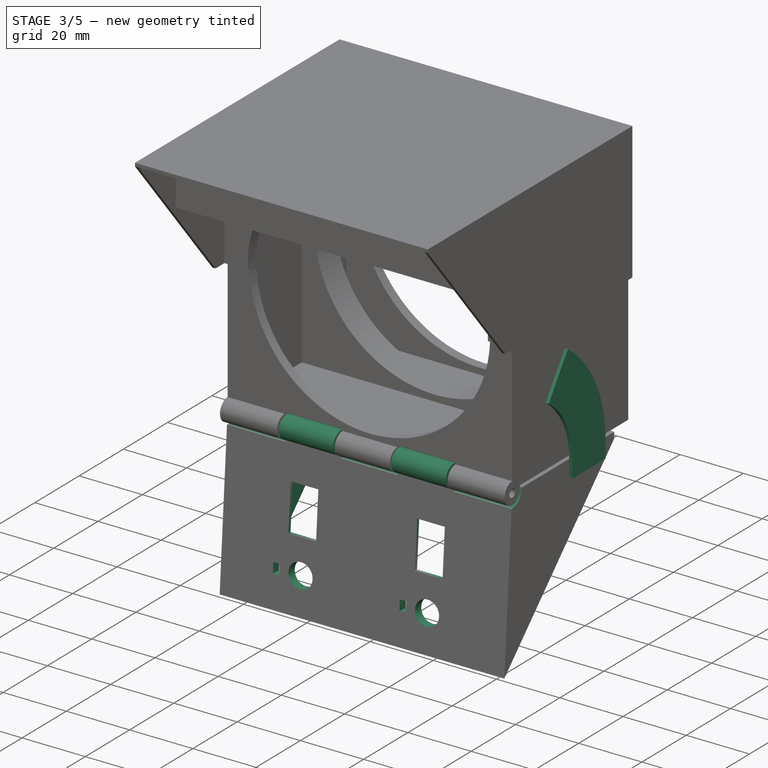
[diagram: stage 3 of 5 — iso view after this stage's code; geometry added in this stage tinted green]
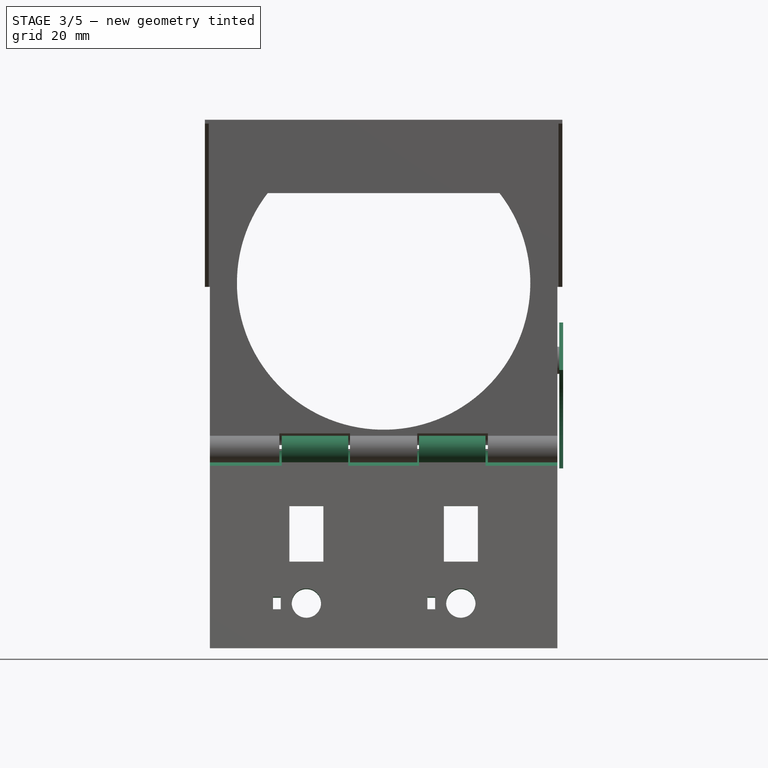
[diagram: stage 3 of 5 — front view after this stage's code; geometry added in this stage tinted green]
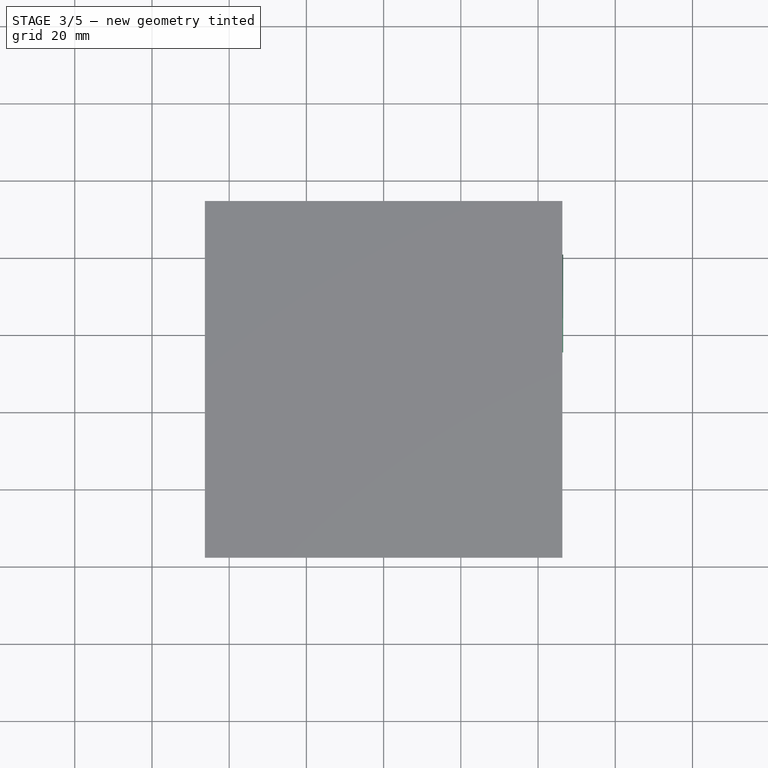
[diagram: stage 3 of 5 — top view after this stage's code; geometry added in this stage tinted green]
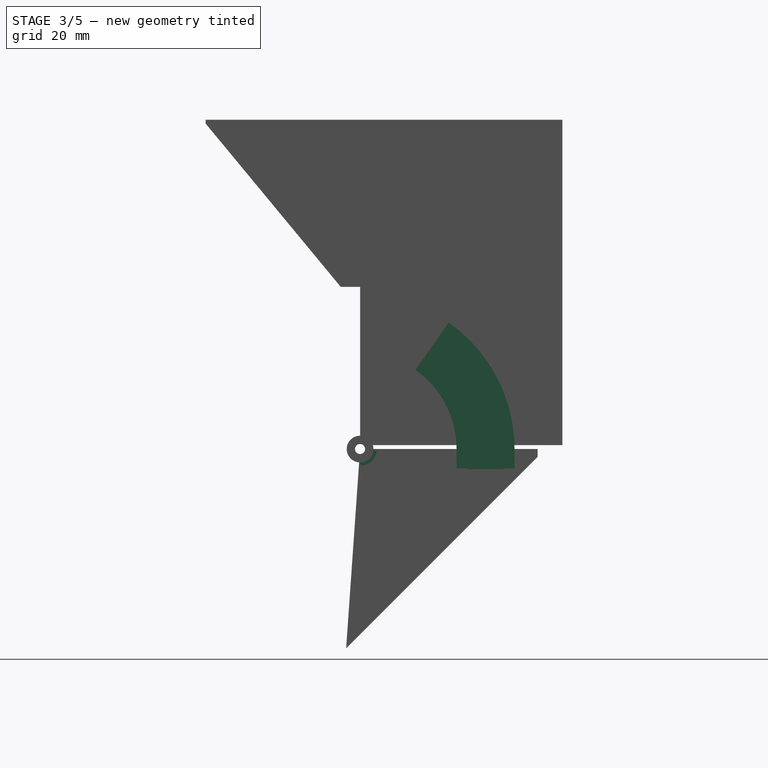
[diagram: stage 3 of 5 — right view after this stage's code; geometry added in this stage tinted green]
FEATURE [Sketcher::SketchObject] Sketch023
  FullyConstrained = true
  MapMode = 5
  Placement = pos=(0,0,0) rot=(0.57735,0.57735,0.57735;2.0944rad)
  Support = -> [YZ_Plane012]
  expr: Constraints[1] = <<fanSupMobSp>>.charnDiam - <<fanSupMobSp>>.jeu
  sketch-geometry (1):
    g0: Circle CenterX=0 CenterY=0 CenterZ=0 NormalX=0 NormalY=0 NormalZ=1 AngleXU=0 Radius=3.45
  constraints (2):
    c: Coincident(g0,g-1)
    c: Diameter(g0) = 6.9
FEATURE [PartDesign::Pad] Pad013  label="charnBase001"
  BaseFeature = -> Pad012
  Direction = (1,1,1)
  Length = 90
  Length2 = 100
  Midplane = true
  Placement = pos=(0,0,0) rot=(0.57735,0.57735,0.57735;2.0944rad)
  Profile = -> Sketch023
  Type = 0
  expr: Length = <<fanSupMobSp>>.larg
FEATURE [Sketcher::SketchObject] Sketch024
  FullyConstrained = true
  MapMode = 5
  Placement = pos=(0,0,0) rot=(1,0,0;1.5708rad)
  Support = -> [XZ_Plane012]
  expr: Constraints[2] = <<fanSupMobSp>>.larg
  expr: Constraints[30] = <<fanSupMobSp>>.charnDiam / 2 + <<fanSupMobSp>>.jeu
  expr: Constraints[31] = <<fanSupMobSp>>.charnLongSeg + <<fanSupMobSp>>.jeu / 2
  expr: Constraints[32] = <<fanSupMobSp>>.charnLongSeg + <<fanSupMobSp>>.jeu
  sketch-geometry (12):
    g0: LineSegment StartX=-45 StartY=0 StartZ=0 EndX=-26.4 EndY=0 EndZ=0
    g1: LineSegment StartX=-26.4 StartY=0 StartZ=0 EndX=-26.4 EndY=4.35 EndZ=0
    g2: LineSegment StartX=-26.4 StartY=4.35 StartZ=0 EndX=-45 EndY=4.35 EndZ=0
    g3: LineSegment StartX=-45 StartY=0 StartZ=0 EndX=-45 EndY=4.35 EndZ=0
    g4: LineSegment StartX=-9.15 StartY=4.35 StartZ=0 EndX=9.15 EndY=4.35 EndZ=0
    g5: LineSegment StartX=9.15 StartY=4.35 StartZ=0 EndX=9.15 EndY=0 EndZ=0
    g6: LineSegment StartX=9.15 StartY=0 StartZ=0 EndX=-9.15 EndY=0 EndZ=0
    g7: LineSegment StartX=-9.15 StartY=0 StartZ=0 EndX=-9.15 EndY=4.35 EndZ=0
    g8: LineSegment StartX=26.4 StartY=0 StartZ=0 EndX=45 EndY=0 EndZ=0
    g9: LineSegment StartX=45 StartY=0 StartZ=0 EndX=45 EndY=4.35 EndZ=0
    g10: LineSegment StartX=45 StartY=4.35 StartZ=0 EndX=26.4 EndY=4.35 EndZ=0
    g11: LineSegment StartX=26.4 StartY=4.35 StartZ=0 EndX=26.4 EndY=0 EndZ=0
  constraints (33):
    c: Coincident(g1,g2)
    c: Coincident(g9,g10)
    c: DistanceX(g2,g9) = 90
    c: Symmetric(g2,g9,g-2)
    c: Coincident(g0,g1)
    c: Vertical(g1)
    c: Coincident(g3,g2)
    c: Coincident(g3,g0)
    c: Horizontal(g0)
    c: Horizontal(g2)
    c: Vertical(g3)
    c: Coincident(g11,g10)
    c: Coincident(g11,g8)
    c: Coincident(g8,g9)
    c: Vertical(g9)
    c: Horizontal(g8)
    c: Vertical(g11)
    c: Horizontal(g10)
    c: Coincident(g7,g6)
    c: Coincident(g6,g5)
    c: Vertical(g5)
    c: Vertical(g7)
    c: Coincident(g7,g4)
    c: Coincident(g5,g4)
    c: Horizontal(g4)
    c: Horizontal(g5,g-1)
    c: Horizontal(g0,g6)
    c: Equal(g1,g7)
    c: Symmetric(g6,g5,g-2)
    c: Symmetric(g8,g0,g-2)
    c: DistanceY(g8,g9) = 4.35
    c: DistanceX(g6,g6) = 18.3
    c: DistanceX(g0,g0) = 18.6
FEATURE [PartDesign::Groove] Groove003  label="charnEvid"
  Angle = 360
  Axis = (1,0,0)
  Base = (0,0,0)
  BaseFeature = -> Pad013
  Placement = pos=(0,0,0) rot=(0.57735,0.57735,0.57735;2.0944rad)
  Profile = -> Sketch024
  ReferenceAxis = -> X_Axis012
FEATURE [Sketcher::SketchObject] Sketch025
  FullyConstrained = true
  MapMode = 5
  Placement = pos=(0,0,0) rot=(0.57735,0.57735,0.57735;2.0944rad)
  Support = -> [YZ_Plane012]
  expr: Constraints[1] = <<fanSupMobSp>>.charnAxeDiam + <<fanSupMobSp>>.jeu
  sketch-geometry (1):
    g0: Circle CenterX=0 CenterY=0 CenterZ=0 NormalX=0 NormalY=0 NormalZ=1 AngleXU=0 Radius=1.3
  constraints (2):
    c: Coincident(g0,g-1)
    c: Diameter(g0) = 2.6
FEATURE [PartDesign::Pocket] Pocket006  label="charnTrouAxe"
  BaseFeature = -> Groove003
  Direction = (1,1,1)
  Length = 90
  Length2 = 100
  Midplane = true
  Placement = pos=(0,0,0) rot=(0.57735,0.57735,0.57735;2.0944rad)
  Profile = -> Sketch025
  Type = 0
  expr: Length = <<fanSupMobSp>>.larg
FEATURE [Sketcher::SketchObject] Sketch026
  FullyConstrained = true
  MapMode = 5
  Placement = pos=(0,0,0) rot=(0.57735,0.57735,0.57735;2.0944rad)
  Support = -> [YZ_Plane012]
  expr: Constraints[10] = <<fanSupFixSp>>.cavitProf
  expr: Constraints[11] = <<fanSupFixSp>>.cavitBisDistInf
  expr: Constraints[4] = <<fanSupFixSp>>.cavitEpToit
  expr: Constraints[6] = <<fanSupFixSp>>.baseAngle
  expr: Constraints[7] = <<fanSupFixSp>>.frontAngle
  expr: Constraints[8] = <<fanSupFixSp>>.cavitBisAngle
  expr: Constraints[9] = <<fanSupFixSp>>.cavitBisDistSup
  sketch-geometry (4):
    g0: LineSegment StartX=2 StartY=-12 StartZ=0 EndX=-1.45847 EndY=-61.4585 EndZ=0
    g1: LineSegment StartX=-1.45847 StartY=-61.4585 StartZ=0 EndX=57 EndY=-3 EndZ=0
    g2: LineSegment StartX=57 StartY=-3 StartZ=0 EndX=11 EndY=-3 EndZ=0
    g3: LineSegment StartX=11 StartY=-3 StartZ=0 EndX=2 EndY=-12 EndZ=0
  constraints (13):
    c: Coincident(g0,g1)
    c: Coincident(g1,g2)
    c: Coincident(g3,g2)
    c: Coincident(g3,g0)
    c: DistanceY(g2,g-1) = 3
    c: Horizontal(g2)
    c: Angle(g-1,g1) = 0.785398
    c: Angle(g-1,g0) = 1.50098
    c: Angle(g-1,g3) = 0.785398
    c: DistanceX(g-1,g2) = 11
    c: DistanceX(g2,g2) = 46
    c: DistanceX(g-1,g0) = 2
    c: Distance(g1) = 82.6728  'hauteurCavitee'
FEATURE [PartDesign::Pocket] Pocket007  label="evidementInterieur"
  BaseFeature = -> Pocket006
  Direction = (1,1,1)
  Length = 70
  Length2 = 100
  Midplane = true
  Placement = pos=(0,0,0) rot=(0.57735,0.57735,0.57735;2.0944rad)
  Profile = -> Sketch026
  Type = 0
  expr: Length = <<fanSupFixSp>>.cavitLarg
FEATURE [Sketcher::SketchObject] Sketch027
  ExternalGeometry = -> [Pocket007]
  FullyConstrained = true
  MapMode = 5
  Placement = pos=(1.73e-14,24,-24) rot=(0.678598,0.678598,0.281085;3.68962rad)
  Support = -> [Pocket007]
  expr: Constraints[5] = <<fanSupFixSp>>.trouFixDiam
  expr: Constraints[6] = <<fanSupFixSp>>.troufixEntaxeLong
  expr: Constraints[8] = <<fanSupFixSp>>.trouFixEntraxeCourt
  sketch-geometry (6):
    g0: Circle CenterX=5 CenterY=40 CenterZ=0 NormalX=0 NormalY=0 NormalZ=1 AngleXU=0 Radius=2
    g1: Circle CenterX=-20 CenterY=40 CenterZ=0 NormalX=0 NormalY=0 NormalZ=1 AngleXU=0 Radius=2
    g2: Circle CenterX=-20 CenterY=-40 CenterZ=0 NormalX=0 NormalY=0 NormalZ=1 AngleXU=0 Radius=2
    g3: Circle CenterX=5 CenterY=-40 CenterZ=0 NormalX=0 NormalY=0 NormalZ=1 AngleXU=0 Radius=2
    g4: LineSegment StartX=-20 StartY=-40 StartZ=0 EndX=5 EndY=-40 EndZ=0
    g5: GeomPoint X=-7.5 Y=-40 Z=0
  constraints (15):
    c: Equal(g1,g0)
    c: Equal(g0,g2)
    c: Equal(g2,g3)
    c: Horizontal(g1,g0)
    c: Vertical(g0,g3)
    c: Diameter(g0) = 4
    c: DistanceY(g2,g1) = 80
    c: Symmetric(g2,g1,g-1)
    c: DistanceX(g2,g3) = 25
    c: DistanceX(g-1,g3) = 5
    c: Horizontal(g2,g3)
    c: Coincident(g4,g3)
    c: Coincident(g4,g2)
    c: Symmetric(g2,g3,g5)
    c: DistanceX(g-3,g5) = 27.2278
FEATURE [PartDesign::Pocket] Pocket008  label="trousDeFixation"
  BaseFeature = -> Pocket007
  Direction = (1,1,1)
  Length = 10
  Length2 = 100
  Placement = pos=(0,0,0) rot=(0.57735,0.57735,0.57735;2.0944rad)
  Profile = -> Sketch027
  Type = 0
FEATURE [Spreadsheet::Sheet] Spreadsheet013  label="languetteSp"
  cells = A1=Sp13; A2=ep; B2(ep)=1; A3=larg; B3(larg)=15; A4=plan; B4(plan)==<<fanSubSystemSp>>.larg / 2; C4=dépend de <<fanSubSystemSp>>.larg; D4="=<<fanSupFixSp>>.larg / 2; A5=r1; B5(r1)=25; A6=r2; B6(r2)==r1 + larg / 2; A7=cranAngle; B7(cranAngle)=15; A8=a1; B8(a1)==cranAngle; A9=a2; B9(a2)==a1 + cranAngle; A10=a3; B10(a3)==a2 + cranAngle; A11=pastilleDiam; B11(pastilleDiam)=7; A12=pastilleEp; B12(pastilleEp)=2; A13=fixeHaut; B13(fixeHaut)=5; A14=fixeProf; B14(fixeProf)=8; A15=fixeLarg; B15(fixeLarg)=13; A16=fixePetiteProf; B16(fixePetiteProf)=2; A17=fixePetiteLarg; B17(fixePetiteLarg)=9; A18=poignEp; B18(poignEp)=6; A19=jeu; B19(jeu)=0.6
FEATURE [Sketcher::SketchObject] Sketch053
  AttachmentOffset = pos=(0,0,45.5) rot=(0,0,1;0rad)
  FullyConstrained = true
  MapMode = 5
  Placement = pos=(45.5,-1.01e-14,1.01e-14) rot=(0.57735,0.57735,0.57735;2.0944rad)
  Support = -> [YZ_Plane033]
  expr: .AttachmentOffset.Base.z = <<languetteSp>>.plan + 0.5
  expr: Constraints[11] = <<languetteSp>>.a3 + 10
  expr: Constraints[19] = <<languetteSp>>.fixeHaut
  expr: Constraints[6] = <<languetteSp>>.larg
  expr: Constraints[7] = <<languetteSp>>.r1
  sketch-geometry (7):
    g0: ArcOfCircle CenterX=0 CenterY=0 CenterZ=0 NormalX=0 NormalY=0 NormalZ=1 AngleXU=0 Radius=40 StartAngle=0 EndAngle=0.959931
    g1: ArcOfCircle CenterX=0 CenterY=0 CenterZ=0 NormalX=0 NormalY=0 NormalZ=1 AngleXU=0 Radius=25 StartAngle=0 EndAngle=0.959931
    g2: LineSegment StartX=14.3394 StartY=20.4788 StartZ=0 EndX=22.9431 EndY=32.7661 EndZ=0
    g3: LineSegment StartX=0 StartY=0 StartZ=0 EndX=14.3394 EndY=20.4788 EndZ=0
    g4: LineSegment StartX=40 StartY=0 StartZ=0 EndX=40 EndY=-5 EndZ=0
    g5: LineSegment StartX=40 StartY=-5 StartZ=0 EndX=25 EndY=-5 EndZ=0
    g6: LineSegment StartX=25 StartY=-5 StartZ=0 EndX=25 EndY=0 EndZ=0
  constraints (20):
    c: Coincident(g0,g-1)
    c: PointOnObject(g0,g-1)
    c: Coincident(g1,g0)
    c: PointOnObject(g1,g-1)
    c: Coincident(g2,g1)
    c: Coincident(g2,g0)
    c: DistanceX(g1,g0) = 15
    c: DistanceX(g0,g1) = 25
    c: Coincident(g3,g0)
    c: Coincident(g3,g1)
    c: Parallel(g2,g3)
    c: Angle(g-1,g3) = 0.959931
    c: Coincident(g4,g5)
    c: Coincident(g5,g6)
    c: Horizontal(g5)
    c: Vertical(g4)
    c: Vertical(g6)
    c: Coincident(g1,g6)
    c: Coincident(g0,g4)
    c: DistanceY(g5,g1) = 5
FEATURE [PartDesign::Pad] Pad030  label="base"
  Direction = (1,1,1)
  Length = 1
  Length2 = 100
  Placement = pos=(0,0,0) rot=(0.57735,0.57735,0.57735;2.0944rad)
  Profile = -> Sketch053
  Type = 0
  expr: Length = <<languetteSp>>.ep
FEATURE [Sketcher::SketchObject] Sketch054
  AttachmentOffset = pos=(0,0,45.5) rot=(0,0,1;0rad)
  FullyConstrained = true
  MapMode = 5
  Placement = pos=(45.5,-1.01e-14,1.01e-14) rot=(0.57735,0.57735,0.57735;2.0944rad)
  Support = -> [YZ_Plane033]
  expr: .AttachmentOffset.Base.z = <<languetteSp>>.plan + 0.5
  expr: Constraints[3] = <<languetteSp>>.pastilleDiam
  expr: Constraints[4] = <<languetteSp>>.r1 + <<languetteSp>>.larg / 2
  expr: Constraints[7] = <<languetteSp>>.a3
  sketch-geometry (3):
    g0: Circle CenterX=22.981 CenterY=22.981 CenterZ=0 NormalX=0 NormalY=0 NormalZ=1 AngleXU=0 Radius=3.5
    g1: ArcOfCircle CenterX=0 CenterY=0 CenterZ=0 NormalX=0 NormalY=0 NormalZ=1 AngleXU=0 Radius=32.5 StartAngle=0 EndAngle=0.785398
    g2: LineSegment StartX=0 StartY=0 StartZ=0 EndX=22.981 EndY=22.981 EndZ=0
  constraints (8):
    c: Coincident(g1,g-1)
    c: Coincident(g1,g0)
    c: PointOnObject(g1,g-1)
    c: Diameter(g0) = 7
    c: DistanceX(g-1,g1) = 32.5
    c: Coincident(g2,g-1)
    c: Coincident(g2,g0)
    c: Angle(g-1,g2) = 0.785398
FEATURE [PartDesign::Pad] Pad031  label="plot"
  BaseFeature = -> Pad030
  Direction = (1,1,1)
  Length = 2.5
  Length2 = 100
  Placement = pos=(0,0,0) rot=(0.57735,0.57735,0.57735;2.0944rad)
  Profile = -> Sketch054
  Reversed = true
  Type = 0
  expr: Length = <<languetteSp>>.pastilleEp + 0.5
FEATURE [PartDesign::Body] Body017  label="languetteBdy"
  Group = -> [Sketch053,Pad030,Sketch054,Pad031,Sketch055,Pad032,Sketch056,Pocket018,Chamfer005,Fillet001,Chamfer006]
  Origin = -> Origin034
  Tip = -> Chamfer006
FEATURE [App::Part] Part016  label="languette"
  Group = -> [Body017,Spreadsheet013]
  Origin = -> Origin033
FEATURE [Sketcher::SketchObject] Sketch060
  FullyConstrained = true
  MapMode = 5
  Support = -> [XY_Plane012]
  expr: Constraints[14] = <<languetteSp>>.fixeLarg + <<fanSupFixSp>>.jeu
  expr: Constraints[15] = <<fanSupFixSp>>.languettePosX
  expr: Constraints[16] = <<fanSupFixSp>>.languettePosY
  expr: Constraints[18] = <<languetteSp>>.fixePetiteLarg + <<fanSupFixSp>>.jeu
  expr: Constraints[23] = <<languetteSp>>.fixeProf + <<fanSupFixSp>>.jeu
  expr: Constraints[24] = <<languetteSp>>.fixePetiteProf + <<fanSupFixSp>>.jeu
  expr: Constraints[25] = <<languetteSp>>.fixePetiteProf + <<fanSupFixSp>>.jeu
  sketch-geometry (9):
    g0: LineSegment StartX=45 StartY=37.3 StartZ=0 EndX=42.4 EndY=37.3 EndZ=0
    g1: LineSegment StartX=42.4 StartY=37.3 StartZ=0 EndX=39 EndY=39.3 EndZ=0
    g2: LineSegment StartX=39 StartY=39.3 StartZ=0 EndX=36.4 EndY=39.3 EndZ=0
    g3: LineSegment StartX=36.4 StartY=39.3 StartZ=0 EndX=36.4 EndY=25.7 EndZ=0
    g4: LineSegment StartX=36.4 StartY=25.7 StartZ=0 EndX=39 EndY=25.7 EndZ=0
    g5: LineSegment StartX=39 StartY=25.7 StartZ=0 EndX=42.4 EndY=27.7 EndZ=0
    g6: LineSegment StartX=42.4 StartY=27.7 StartZ=0 EndX=45 EndY=27.7 EndZ=0
    g7: LineSegment StartX=45 StartY=27.7 StartZ=0 EndX=45 EndY=37.3 EndZ=0
    g8: LineSegment StartX=36.4 StartY=32.5 StartZ=0 EndX=45 EndY=32.5 EndZ=0
  constraints (26):
    c: Horizontal(g0)
    c: Coincident(g0,g1)
    c: Coincident(g1,g2)
    c: Horizontal(g2)
    c: Coincident(g2,g3)
    c: Vertical(g3)
    c: Coincident(g3,g4)
    c: Horizontal(g4)
    c: Coincident(g4,g5)
    c: Coincident(g5,g6)
    c: Horizontal(g6)
    c: Coincident(g6,g7)
    c: Coincident(g7,g0)
    c: Vertical(g7)
    c: DistanceY(g3,g3) = 13.6
    c: DistanceX(g-1,g6) = 45
    c: DistanceY(g-1,g3) = 25.7
    c: Horizontal(g8)
    c: DistanceY(g7,g7) = 9.6
    c: Symmetric(g6,g0,g8)
    c: Symmetric(g3,g2,g8)
    c: Vertical(g5,g0)
    c: Vertical(g4,g1)
    c: DistanceX(g3,g6) = 8.6
    c: DistanceX(g3,g4) = 2.6
    c: DistanceX(g5,g6) = 2.6
FEATURE [PartDesign::Pocket] Pocket020  label="emplacementLnaguette"
  BaseFeature = -> Pocket008
  Direction = (1,1,1)
  Length = 5.2
  Length2 = 100
  Placement = pos=(0,0,0) rot=(0.57735,0.57735,0.57735;2.0944rad)
  Profile = -> Sketch060
  Type = 0
  expr: Length = <<languetteSp>>.fixeHaut + 0.2
FEATURE [PartDesign::Plane] DatumPlane004
  AttachmentOffset = pos=(0,0,0) rot=(-1,0,0;0.069813rad)
  Length = 60.3311
  MapMode = 5
  Placement = pos=(0,0,0) rot=(1,0,0;1.50098rad)
  ResizeMode = 0
  Support = -> [XZ_Plane012]
  Width = 63.6971
FEATURE [Sketcher::SketchObject] Sketch066
  FullyConstrained = true
  MapMode = 5
  Placement = pos=(0,0,0) rot=(1,0,0;1.50098rad)
  Support = -> [DatumPlane004]
  expr: Constraints[24] = <<fanSupFixSp>>.potarPosX
  expr: Constraints[29] = switch15x10_003_0#<<sw15x10Sp>>.trouLarg
  expr: Constraints[31] = switch15x10_003_0#<<sw15x10Sp>>.trouLong
  expr: Constraints[32] = potar#<<potarSp>>.trouDiam + <<fanSupFixSp>>.jeu
  expr: Constraints[34] = <<fanSupFixSp>>.switchPosY
  expr: Constraints[35] = <<fanSupFixSp>>.potarPosY
  expr: Constraints[44] = potar#<<potarSp>>.ergotDistCentre - potar#<<potarSp>>.potarJeu / 2
  expr: Constraints[45] = potar#<<potarSp>>.ergotLarg + potar#<<potarSp>>.potarJeu
  expr: Constraints[46] = potar#<<potarSp>>.ergotLong + potar#<<potarSp>>.potarJeu
  expr: Constraints[57] = potar#<<potarSp>>.ergotDistCentre - potar#<<potarSp>>.potarJeu / 2
  sketch-geometry (23):
    g0: Circle CenterX=-20 CenterY=-40 CenterZ=0 NormalX=0 NormalY=0 NormalZ=1 AngleXU=0 Radius=3.8
    g1: Circle CenterX=20 CenterY=-40 CenterZ=0 NormalX=0 NormalY=0 NormalZ=1 AngleXU=0 Radius=3.8
    g2: LineSegment StartX=-24.4 StartY=-14.75 StartZ=0 EndX=-15.6 EndY=-14.75 EndZ=0
    g3: LineSegment StartX=-15.6 StartY=-14.75 StartZ=0 EndX=-15.6 EndY=-29.25 EndZ=0
    g4: LineSegment StartX=-15.6 StartY=-29.25 StartZ=0 EndX=-24.4 EndY=-29.25 EndZ=0
    g5: LineSegment StartX=-24.4 StartY=-29.25 StartZ=0 EndX=-24.4 EndY=-14.75 EndZ=0
    g6: LineSegment StartX=24.4 StartY=-14.75 StartZ=0 EndX=15.6 EndY=-14.75 EndZ=0
    g7: LineSegment StartX=15.6 StartY=-14.75 StartZ=0 EndX=15.6 EndY=-29.25 EndZ=0
    g8: LineSegment StartX=15.6 StartY=-29.25 StartZ=0 EndX=24.4 EndY=-29.25 EndZ=0
    g9: LineSegment StartX=24.4 StartY=-29.25 StartZ=0 EndX=24.4 EndY=-14.75 EndZ=0
    g10: LineSegment StartX=-20 StartY=-40 StartZ=0 EndX=20 EndY=-40 EndZ=0
    g11: LineSegment StartX=-20 StartY=-40 StartZ=0 EndX=-20 EndY=-14.75 EndZ=0
    g12: LineSegment StartX=20 StartY=-40 StartZ=0 EndX=20 EndY=-14.75 EndZ=0
    g13: GeomPoint X=15.6 Y=-22 Z=0
    g14: LineSegment StartX=11.35 StartY=-38.4 StartZ=0 EndX=13.35 EndY=-38.4 EndZ=0
    g15: LineSegment StartX=13.35 StartY=-38.4 StartZ=0 EndX=13.35 EndY=-41.6 EndZ=0
    g16: LineSegment StartX=13.35 StartY=-41.6 StartZ=0 EndX=11.35 EndY=-41.6 EndZ=0
    g17: LineSegment StartX=11.35 StartY=-41.6 StartZ=0 EndX=11.35 EndY=-38.4 EndZ=0
    g18: LineSegment StartX=-28.65 StartY=-38.4 StartZ=0 EndX=-26.65 EndY=-38.4 EndZ=0
    g19: LineSegment StartX=-26.65 StartY=-38.4 StartZ=0 EndX=-26.65 EndY=-41.6 EndZ=0
    g20: LineSegment StartX=-26.65 StartY=-41.6 StartZ=0 EndX=-28.65 EndY=-41.6 EndZ=0
    g21: LineSegment StartX=-28.65 StartY=-41.6 StartZ=0 EndX=-28.65 EndY=-38.4 EndZ=0
    g22: GeomPoint X=-26.65 Y=-40 Z=0
  constraints (60):
    c: Coincident(g2,g3)
    c: Coincident(g3,g4)
    c: Coincident(g4,g5)
    c: Coincident(g5,g2)
    c: Horizontal(g2)
    c: Horizontal(g4)
    c: Vertical(g3)
    c: Vertical(g5)
    c: Coincident(g6,g7)
    c: Coincident(g7,g8)
    c: Coincident(g8,g9)
    c: Coincident(g9,g6)
    c: Horizontal(g6)
    c: Horizontal(g8)
    c: Vertical(g7)
    c: Vertical(g9)
    c: Coincident(g10,g0)
    c: Coincident(g10,g1)
    c: Coincident(g11,g0)
    c: Vertical(g11)
    c: Coincident(g12,g1)
    c: Vertical(g12)
    c: Symmetric(g2,g2,g11)
    c: Symmetric(g6,g6,g12)
    c: DistanceX(g-1,g1) = 20
    c: Symmetric(g0,g1,g-2)
    c: Equal(g6,g2)
    c: Equal(g3,g7)
    c: Equal(g1,g0)
    c: DistanceX(g6,g6) = 8.8
    c: Horizontal(g2,g6)
    c: DistanceY(g9,g9) = 14.5
    c: Diameter(g1) = 7.6
    c: Symmetric(g6,g7,g13)
    c: DistanceY(g13,g-1) = 22
    c: DistanceY(g1,g-1) = 40
    c: Coincident(g14,g15)
    c: Coincident(g15,g16)
    c: Coincident(g16,g17)
    c: Coincident(g17,g14)
    c: Horizontal(g14)
    c: Horizontal(g16)
    c: Vertical(g15)
    c: Symmetric(g16,g14,g10)
    c: DistanceX(g15,g1) = 6.65
    c: DistanceX(g14,g14) = 2
    c: DistanceY(g17,g17) = 3.2
    c: Coincident(g18,g19)
    c: Coincident(g19,g20)
    c: Coincident(g20,g21)
    c: Coincident(g21,g18)
    c: Horizontal(g18)
    c: Horizontal(g20)
    c: Vertical(g19)
    c: Vertical(g21)
    c: Symmetric(g19,g18,g22)
    c: Horizontal(g22,g0)
    c: DistanceX(g19,g0) = 6.65
    c: Equal(g21,g17)
    c: Equal(g18,g14)
FEATURE [App::Link] Link002  label="switxh15x10_001"
  LinkPlacement = pos=(20,-1.5045,-22.1459) rot=(0.563438,-0.563438,0.604214;2.05457rad)
  LinkedObject = -> <external modelExternes/switch15x10_003_0.FCStd>#Part
  Placement = pos=(20,-1.5045,-22.1459) rot=(0.563438,-0.563438,0.604214;2.05457rad)
FEATURE [App::Link] Link003  label="switxh15x10_002"
  LinkPlacement = pos=(-20,-1.7202,-21.7329) rot=(0.563438,-0.563438,0.604214;2.05457rad)
  LinkedObject = -> Link002
  Placement = pos=(-20,-1.7202,-21.7329) rot=(0.563438,-0.563438,0.604214;2.05457rad)
FEATURE [PartDesign::Pocket] Pocket025  label="posSwitchEtPotar"
  BaseFeature = -> Pocket020
  Direction = (1,1,1)
  Length = 3
  Length2 = 100
  Placement = pos=(0,0,0) rot=(0.57735,0.57735,0.57735;2.0944rad)
  Profile = -> Sketch066
  Type = 0
  expr: Length = <<fanSupFixSp>>.epParois
FEATURE [Sketcher::SketchObject] Sketch067
  FullyConstrained = true
  MapMode = 5
  Support = -> [XY_Plane012]
  expr: Constraints[0] = <<fanSubSystemSp>>.trouFilsVentiloDiam
  expr: Constraints[1] = <<fanSubSystemSp>>.trouFilsVentiloPosX
  expr: Constraints[2] = <<fanSubSystemSp>>.trouFilsVentiloPosY
  sketch-geometry (1):
    g0: Circle CenterX=33 CenterY=15 CenterZ=0 NormalX=0 NormalY=0 NormalZ=1 AngleXU=0 Radius=2
  constraints (3):
    c: Diameter(g0) = 4
    c: DistanceX(g-1,g0) = 33
    c: DistanceY(g-1,g0) = 15
FEATURE [PartDesign::Pocket] Pocket026  label="trousFilsVentiloLed"
  BaseFeature = -> Pocket025
  Direction = (1,1,1)
  Length = 13
  Length2 = 100
  Placement = pos=(0,0,0) rot=(0.57735,0.57735,0.57735;2.0944rad)
  Profile = -> Sketch067
  Type = 0
FEATURE [PartDesign::Plane] DatumPlane005  label="planCreuserEmplacementswitch"
  AttachmentOffset = pos=(0,0,-3) rot=(0,0,1;0rad)
  Length = 60.3311
  MapMode = 5
  Placement = pos=(0,2.99269,-0.209269) rot=(1,0,0;1.50098rad)
  ResizeMode = 0
  Support = -> [DatumPlane004]
  Width = 63.6971
  expr: .AttachmentOffset.Base.z = -<<fanSupFixSp>>.epParois
FEATURE [Sketcher::SketchObject] Sketch068
  FullyConstrained = true
  MapMode = 5
  Placement = pos=(0,2.99269,-0.209269) rot=(1,0,0;1.50098rad)
  Support = -> [DatumPlane005]
  expr: Constraints[21] = <<fanSupFixSp>>.potarPosX
  expr: Constraints[24] = <<fanSupFixSp>>.switchPosY
  sketch-geometry (10):
    g0: LineSegment StartX=-26 StartY=-12.5 StartZ=0 EndX=-14 EndY=-12.5 EndZ=0
    g1: LineSegment StartX=-14 StartY=-12.5 StartZ=0 EndX=-14 EndY=-31.5 EndZ=0
    g2: LineSegment StartX=-14 StartY=-31.5 StartZ=0 EndX=-26 EndY=-31.5 EndZ=0
    g3: LineSegment StartX=-26 StartY=-31.5 StartZ=0 EndX=-26 EndY=-12.5 EndZ=0
    g4: LineSegment StartX=14 StartY=-12.5 StartZ=0 EndX=26 EndY=-12.5 EndZ=0
    g5: LineSegment StartX=26 StartY=-12.5 StartZ=0 EndX=26 EndY=-31.5 EndZ=0
    g6: LineSegment StartX=26 StartY=-31.5 StartZ=0 EndX=14 EndY=-31.5 EndZ=0
    g7: LineSegment StartX=14 StartY=-31.5 StartZ=0 EndX=14 EndY=-12.5 EndZ=0
    g8: GeomPoint X=-20 Y=-12.5 Z=0
    g9: GeomPoint X=-14 Y=-22 Z=0
  constraints (25):
    c: Coincident(g0,g1)
    c: Coincident(g1,g2)
    c: Coincident(g2,g3)
    c: Coincident(g3,g0)
    c: Horizontal(g0)
    c: Horizontal(g2)
    c: Vertical(g1)
    c: Vertical(g3)
    c: Coincident(g4,g5)
    c: Coincident(g5,g6)
    c: Coincident(g6,g7)
    c: Coincident(g7,g4)
    c: Horizontal(g4)
    c: Horizontal(g6)
    c: Vertical(g5)
    c: Vertical(g7)
    c: Equal(g0,g4)
    c: Equal(g7,g1)
    c: Symmetric(g0,g4,g-2)
    c: DistanceX(g0,g0) = 12
    c: Symmetric(g0,g0,g8)
    c: DistanceX(g8,g-1) = 20
    c: DistanceY(g1,g1) = 19
    c: Symmetric(g0,g1,g9)
    c: DistanceY(g9,g-1) = 22
FEATURE [PartDesign::Pocket] Pocket027  label="creuxSwitch"
  BaseFeature = -> Pocket026
  Direction = (1,1,1)
  Length = 2
  Length2 = 100
  Placement = pos=(0,0,0) rot=(0.57735,0.57735,0.57735;2.0944rad)
  Profile = -> Sketch068
  Reversed = true
  Type = 0
  expr: Length = <<fanSupFixSp>>.epParois - 1
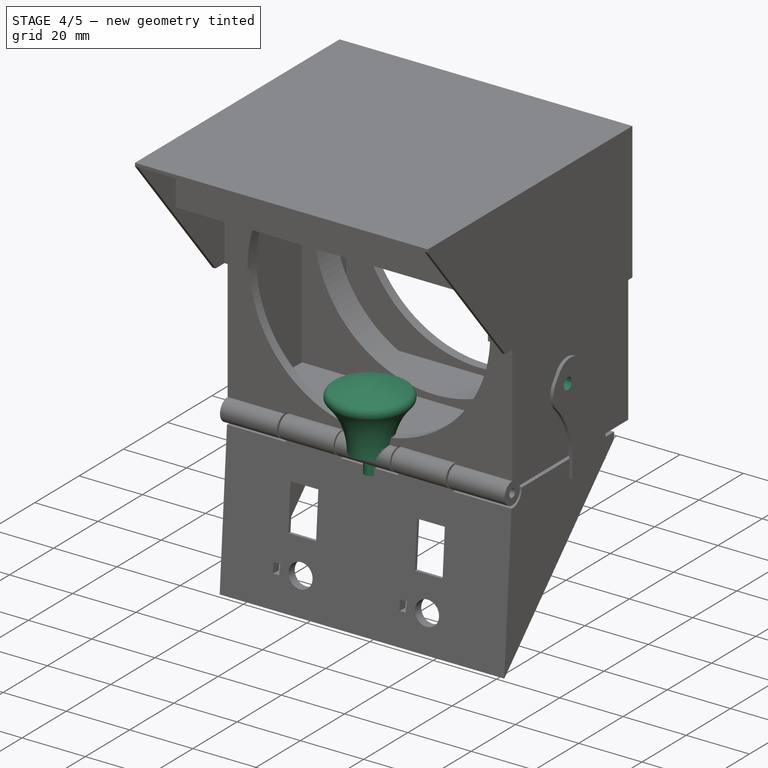
[diagram: stage 4 of 5 — iso view after this stage's code; geometry added in this stage tinted green]
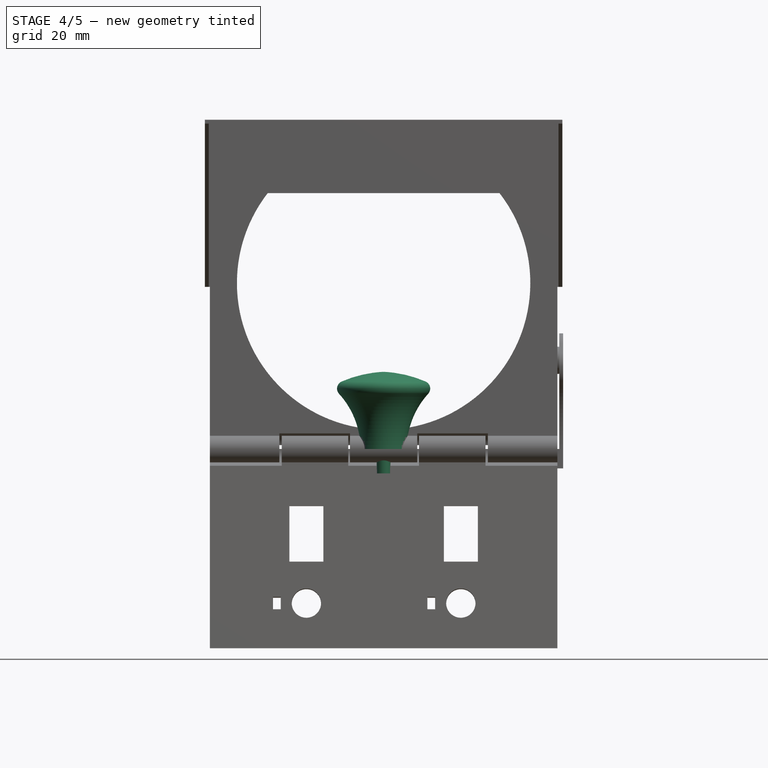
[diagram: stage 4 of 5 — front view after this stage's code; geometry added in this stage tinted green]
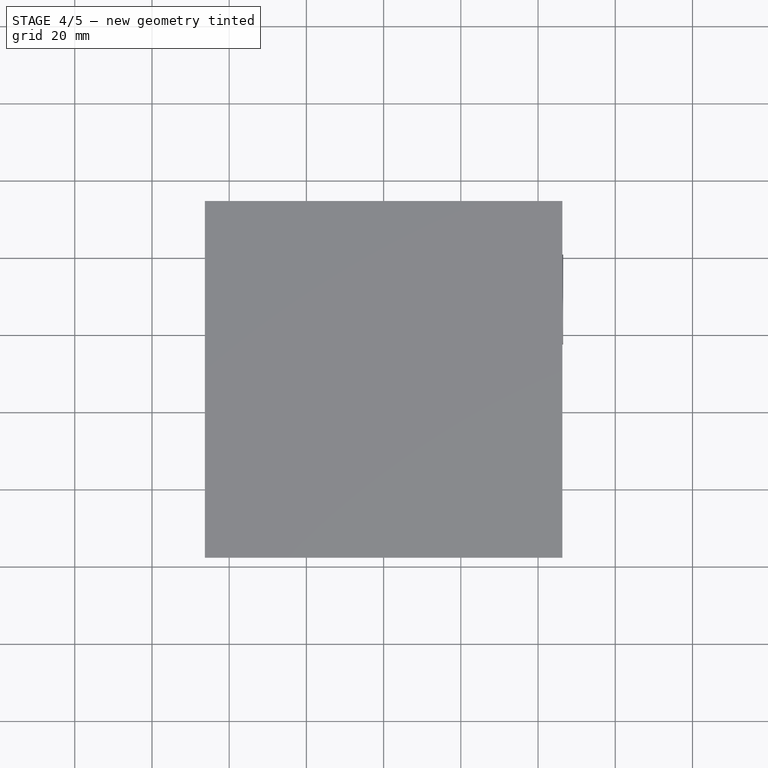
[diagram: stage 4 of 5 — top view after this stage's code; geometry added in this stage tinted green]
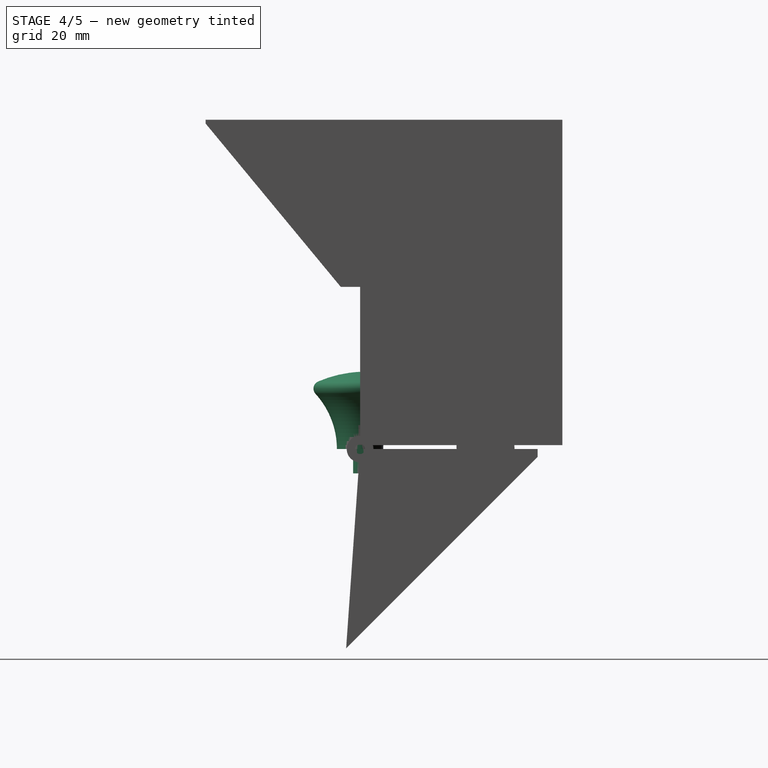
[diagram: stage 4 of 5 — right view after this stage's code; geometry added in this stage tinted green]
FEATURE [Sketcher::SketchObject] Sketch020
  FullyConstrained = true
  MapMode = 5
  Placement = pos=(0,0,0) rot=(0.57735,0.57735,0.57735;2.0944rad)
  Support = -> [YZ_Plane009]
  expr: Constraints[13] = <<ecrouSp001>>.ep / 2
  expr: Constraints[15] = <<ecrouSp001>>.hexLarg / 2
  expr: Constraints[17] = 3.5
  expr: Constraints[5] = <<ecrouSp001>>.ep / 2
  expr: Constraints[6] = <<ecrouSp001>>.hexLarg / 2
  sketch-geometry (6):
    g0: LineSegment StartX=-2.75 StartY=1.25 StartZ=0 EndX=-3.5 EndY=0.816987 EndZ=0
    g1: LineSegment StartX=-3.5 StartY=0.816987 StartZ=0 EndX=-3.5 EndY=1.25 EndZ=0
    g2: LineSegment StartX=-3.5 StartY=1.25 StartZ=0 EndX=-2.75 EndY=1.25 EndZ=0
    g3: LineSegment StartX=-2.75 StartY=-1.25 StartZ=0 EndX=-3.5 EndY=-0.816987 EndZ=0
    g4: LineSegment StartX=-3.5 StartY=-0.816987 StartZ=0 EndX=-3.5 EndY=-1.25 EndZ=0
    g5: LineSegment StartX=-3.5 StartY=-1.25 StartZ=0 EndX=-2.75 EndY=-1.25 EndZ=0
  constraints (18):
    c: Coincident(g0,g1)
    c: Vertical(g1)
    c: Coincident(g1,g2)
    c: Coincident(g2,g0)
    c: Horizontal(g2)
    c: DistanceY(g-1,g0) = 1.25
    c: DistanceX(g0,g-1) = 2.75
    c: Angle(g2,g0) = 0.523599
    c: Coincident(g3,g4)
    c: Vertical(g4)
    c: Coincident(g4,g5)
    c: Horizontal(g5)
    c: Coincident(g5,g3)
    c: DistanceY(g3,g-1) = 1.25
    c: Angle(g3,g5) = 0.523599
    c: DistanceX(g3,g-1) = 2.75
    c: Vertical(g0,g3)
    c: DistanceX(g0,g-1) = 3.5
FEATURE [Sketcher::SketchObject] Sketch021
  FullyConstrained = true
  MapMode = 5
  Support = -> [XY_Plane008]
  expr: Constraints[19] = <<ecrouSp001>>.hexLarg
  expr: Constraints[21] = <<ecrouSp001>>.diam
  sketch-geometry (8):
    g0: LineSegment StartX=2.75 StartY=-1.58771 StartZ=0 EndX=2.75 EndY=1.58771 EndZ=0
    g1: LineSegment StartX=2.75 StartY=1.58771 StartZ=0 EndX=1.4686e-12 EndY=3.17543 EndZ=0
    g2: LineSegment StartX=1.4688e-12 StartY=3.17543 StartZ=0 EndX=-2.75 EndY=1.58771 EndZ=0
    g3: LineSegment StartX=-2.75 StartY=1.58771 StartZ=0 EndX=-2.75 EndY=-1.58771 EndZ=0
    g4: LineSegment StartX=-2.75 StartY=-1.58771 StartZ=0 EndX=1.469e-12 EndY=-3.17543 EndZ=0
    g5: LineSegment StartX=1.469e-12 StartY=-3.17543 StartZ=0 EndX=2.75 EndY=-1.58771 EndZ=0
    g6: Circle CenterX=0 CenterY=0 CenterZ=0 NormalX=0 NormalY=0 NormalZ=1 AngleXU=0 Radius=3.17543
    g7: Circle CenterX=0 CenterY=0 CenterZ=0 NormalX=0 NormalY=0 NormalZ=1 AngleXU=0 Radius=1.5
  constraints (18):
    c: Coincident(g0,g1)
    c: Coincident(g1,g2)
    c: Coincident(g2,g3)
    c: Coincident(g3,g4)
    c: Coincident(g4,g5)
    c: Coincident(g5,g0)
    c: Equal(g0, g1-g5) x5
    c: PointOnObject(g0,g6)
    c: PointOnObject(g1,g6)
    c: PointOnObject(g2,g6)
    c: PointOnObject(g3,g6)
    c: PointOnObject(g4,g6)
    c: PointOnObject(g5,g6)
    c: Coincident(g6,g-1)
    c: Vertical(g0)
    c: DistanceX(g3,g0) = 5.5
    c: Coincident(g7,g-1)
    c: Diameter(g7) = 3
FEATURE [PartDesign::Pad] Pad011
  Direction = (1,1,1)
  Length = 2.5
  Length2 = 100
  Midplane = true
  Profile = -> Sketch021
  Type = 0
  expr: Length = <<ecrouSp001>>.ep
FEATURE [PartDesign::Groove] Groove002
  Angle = 360
  Axis = (-2e-16,3e-16,1)
  Base = (0,0,0)
  BaseFeature = -> Pad011
  Profile = -> Sketch020
  ReferenceAxis = -> Sketch020 [V_Axis]
  Reversed = true
FEATURE [Spreadsheet::Sheet] Spreadsheet003  label="ecrouSp001"
  cells = A1=nom; B1(nom)=ecrouM3; A2=ep; B2(ep)=2.5; A3=hexLarg; B3(hexLarg)=5.5; A4=diam; B4(diam)=3; A5=grandeLong; B5(grandeLong)==1.15 * hexLarg
FEATURE [PartDesign::Chamfer] Chamfer004
  Angle = 45
  Base = -> Groove002 [Edge37,Edge26]
  BaseFeature = -> Groove002
  ChamferType = 0
  FlipDirection = false
  Size = 0.2
  Size2 = 1
  SupportTransform = false
  UseAllEdges = false
FEATURE [Sketcher::SketchObject] Sketch055
  FullyConstrained = true
  MapMode = 5
  Support = -> [XY_Plane033]
  expr: Constraints[12] = <<languetteSp>>.fixeLarg
  expr: Constraints[13] = <<languetteSp>>.fixePetiteLarg
  expr: Constraints[14] = <<languetteSp>>.plan + 0.5
  expr: Constraints[15] = <<languetteSp>>.r1 + <<languetteSp>>.larg / 2 - <<languetteSp>>.fixePetiteLarg / 2
  expr: Constraints[25] = <<languetteSp>>.fixePetiteProf + 1
  expr: Constraints[4] = <<languetteSp>>.fixeProf + 0.5
  expr: Constraints[5] = <<languetteSp>>.fixePetiteProf
  sketch-geometry (9):
    g0: LineSegment StartX=39 StartY=39 StartZ=0 EndX=37 EndY=39 EndZ=0
    g1: LineSegment StartX=37 StartY=39 StartZ=0 EndX=37 EndY=26 EndZ=0
    g2: LineSegment StartX=37 StartY=26 StartZ=0 EndX=39 EndY=26 EndZ=0
    g3: LineSegment StartX=45.5 StartY=28 StartZ=0 EndX=45.5 EndY=37 EndZ=0
    g4: LineSegment StartX=45.5 StartY=32.5 StartZ=0 EndX=37 EndY=32.5 EndZ=0
    g5: LineSegment StartX=45.5 StartY=37 StartZ=0 EndX=42.5 EndY=37 EndZ=0
    g6: LineSegment StartX=42.5 StartY=37 StartZ=0 EndX=39 EndY=39 EndZ=0
    g7: LineSegment StartX=39 StartY=26 StartZ=0 EndX=42.5 EndY=28 EndZ=0
    g8: LineSegment StartX=42.5 StartY=28 StartZ=0 EndX=45.5 EndY=28 EndZ=0
  constraints (26):
    c: Coincident(g0,g1)
    c: Vertical(g1)
    c: Coincident(g1,g2)
    c: Vertical(g3)
    c: DistanceX(g0,g3) = 8.5
    c: DistanceX(g0,g0) = 2
    c: Vertical(g2,g0)
    c: Horizontal(g0)
    c: Parallel(g2,g0)
    c: Horizontal(g4)
    c: Symmetric(g3,g3,g4)
    c: Symmetric(g1,g0,g4)
    c: DistanceY(g1,g1) = 13
    c: DistanceY(g3,g3) = 9
    c: DistanceX(g-1,g3) = 45.5
    c: DistanceY(g-1,g3) = 28
    c: Coincident(g5,g3)
    c: Horizontal(g5)
    c: Coincident(g5,g6)
    c: Coincident(g6,g0)
    c: Coincident(g2,g7)
    c: Coincident(g7,g8)
    c: Coincident(g8,g3)
    c: Horizontal(g8)
    c: Vertical(g7,g5)
    c: DistanceX(g7,g3) = 3
FEATURE [PartDesign::Pad] Pad032  label="fixation"
  BaseFeature = -> Pad031
  Direction = (1,1,1)
  Length = 5
  Length2 = 100
  Placement = pos=(0,0,0) rot=(0.57735,0.57735,0.57735;2.0944rad)
  Profile = -> Sketch055
  Reversed = true
  Type = 0
  expr: Length = <<languetteSp>>.fixeHaut
FEATURE [Sketcher::SketchObject] Sketch056
  AttachmentOffset = pos=(0,0,45) rot=(0,0,1;0rad)
  FullyConstrained = true
  MapMode = 5
  Placement = pos=(45,-1e-14,1e-14) rot=(0.57735,0.57735,0.57735;2.0944rad)
  Support = -> [YZ_Plane033]
  expr: .AttachmentOffset.Base.z = <<languetteSp>>.plan
  expr: Constraints[3] = <<languetteSp>>.a3
  expr: Constraints[7] = <<languetteSp>>.r2
  sketch-geometry (3):
    g0: Circle CenterX=22.981 CenterY=22.981 CenterZ=0 NormalX=0 NormalY=0 NormalZ=1 AngleXU=0 Radius=1.8
    g1: LineSegment StartX=22.981 StartY=22.981 StartZ=0 EndX=0 EndY=0 EndZ=0
    g2: ArcOfCircle CenterX=0 CenterY=0 CenterZ=0 NormalX=0 NormalY=0 NormalZ=1 AngleXU=0 Radius=32.5 StartAngle=0 EndAngle=0.785398
  constraints (8):
    c: Diameter(g0) = 3.6
    c: Coincident(g1,g0)
    c: Coincident(g1,g-1)
    c: Angle(g-1,g1) = 0.785398
    c: Coincident(g2,g-1)
    c: Coincident(g2,g0)
    c: PointOnObject(g2,g-1)
    c: DistanceX(g-1,g2) = 32.5
FEATURE [PartDesign::Pocket] Pocket018  label="trouPoignee"
  BaseFeature = -> Pad032
  Direction = (1,1,1)
  Length = 5
  Length2 = 100
  Midplane = true
  Placement = pos=(0,0,0) rot=(0.57735,0.57735,0.57735;2.0944rad)
  Profile = -> Sketch056
  Reversed = true
  Type = 1
  expr: Length = 5mm
FEATURE [PartDesign::Chamfer] Chamfer005
  Angle = 45
  Base = -> Pocket018 [Edge40]
  BaseFeature = -> Pocket018
  ChamferType = 0
  FlipDirection = false
  Placement = pos=(0,0,0) rot=(0.57735,0.57735,0.57735;2.0944rad)
  Size = 1
  Size2 = 1
  SupportTransform = false
  UseAllEdges = false
FEATURE [Sketcher::SketchObject] Sketch057
  FullyConstrained = false
  MapMode = 5
  Placement = pos=(0,0,0) rot=(0.57735,0.57735,0.57735;2.0944rad)
  Support = -> [YZ_Plane035]
  sketch-geometry (4):
    g0: LineSegment StartX=0 StartY=0 StartZ=0 EndX=6 EndY=2.6e-15 EndZ=0
    g1: LineSegment StartX=0 StartY=0 StartZ=0 EndX=1.8e-15 EndY=20 EndZ=0
    g2: ArcOfCircle CenterX=27.231 CenterY=0 CenterZ=0 NormalX=0 NormalY=0 NormalZ=1 AngleXU=0 Radius=21.231 StartAngle=2.27373 EndAngle=3.14159
    g3: ArcOfCircle CenterX=-1.38972 CenterY=-10.8275 CenterZ=0 NormalX=0 NormalY=0 NormalZ=1 AngleXU=0 Radius=30.8588 StartAngle=1.06705 EndAngle=1.52575
  constraints (10):
    c: Coincident(g0,g-1)
    c: PointOnObject(g0,g-1)
    c: Coincident(g1,g0)
    c: PointOnObject(g1,g-2)
    c: PointOnObject(g2,g-1)
    c: Coincident(g2,g0)
    c: Coincident(g3,g1)
    c: DistanceX(g0,g0) = 6
    c: Coincident(g2,g3)
    c: DistanceY(g1,g1) = 20
FEATURE [PartDesign::Revolution] Revolution
  Angle = 360
  Axis = (-2e-16,3e-16,1)
  Base = (0,0,0)
  Placement = pos=(0,0,0) rot=(0.57735,0.57735,0.57735;2.0944rad)
  Profile = -> Sketch057
  ReferenceAxis = -> Sketch057 [V_Axis]
  Reversed = true
FEATURE [PartDesign::Fillet] Fillet
  Base = -> Revolution [Edge2]
  BaseFeature = -> Revolution
  Placement = pos=(0,0,0) rot=(0.57735,0.57735,0.57735;2.0944rad)
  Radius = 2
  SupportTransform = false
  UseAllEdges = false
FEATURE [Sketcher::SketchObject] Sketch058
  FullyConstrained = true
  MapMode = 5
  Placement = pos=(0,0,0) rot=(0.707107,0.707107,0;3.14159rad)
  Support = -> [Fillet]
  sketch-geometry (1):
    g0: Circle CenterX=0 CenterY=0 CenterZ=0 NormalX=0 NormalY=0 NormalZ=1 AngleXU=0 Radius=2
  constraints (2):
    c: Coincident(g0,g-1)
    c: Diameter(g0) = 4
FEATURE [PartDesign::Pocket] Pocket019
  BaseFeature = -> Fillet
  Direction = (1,1,1)
  Length = 8
  Length2 = 100
  Placement = pos=(0,0,0) rot=(0.57735,0.57735,0.57735;2.0944rad)
  Profile = -> Sketch058
  Type = 0
FEATURE [PartDesign::Body] Body018
  Group = -> [Sketch057,Revolution,Fillet,Sketch058,Pocket019]
  Origin = -> Origin036
  Tip = -> Pocket019
FEATURE [App::Part] Part017  label="poignee"
  Group = -> [Body018]
  Origin = -> Origin035
  Placement = pos=(46,23,23) rot=(0,1,0;1.5708rad)
FEATURE [PartDesign::Fillet] Fillet001  label="emprunteVisTf"
  Base = -> Chamfer005 [Edge18,Edge14]
  BaseFeature = -> Chamfer005
  Placement = pos=(0,0,0) rot=(0.57735,0.57735,0.57735;2.0944rad)
  Radius = 6
  SupportTransform = false
  UseAllEdges = false
FEATURE [Sketcher::SketchObject] Sketch059
  FullyConstrained = true
  MapMode = 5
  Placement = pos=(0,0,0) rot=(1,0,0;1.5708rad)
  Support = -> [XZ_Plane037]
  sketch-geometry (5):
    g0: LineSegment StartX=3 StartY=1.7 StartZ=0 EndX=1.8 EndY=0 EndZ=0
    g1: LineSegment StartX=1.8 StartY=0 StartZ=0 EndX=1.8 EndY=-6.3 EndZ=0
    g2: LineSegment StartX=3 StartY=1.7 StartZ=0 EndX=0 EndY=1.7 EndZ=0
    g3: LineSegment StartX=0 StartY=1.7 StartZ=0 EndX=0 EndY=-6.3 EndZ=0
    g4: LineSegment StartX=0 StartY=-6.3 StartZ=0 EndX=1.8 EndY=-6.3 EndZ=0
  constraints (15):
    c: Coincident(g0,g1)
    c: Vertical(g1)
    c: DistanceY(g1,g0) = 8
    c: DistanceY(g-1,g0) = 1.7
    c: PointOnObject(g0,g-1)
    c: Coincident(g2,g0)
    c: PointOnObject(g2,g-2)
    c: Horizontal(g2)
    c: Coincident(g3,g2)
    c: Vertical(g3)
    c: Coincident(g4,g3)
    c: Coincident(g4,g1)
    c: Horizontal(g4)
    c: DistanceX(g2,g2) = 3
    c: DistanceX(g4,g4) = 1.8
FEATURE [PartDesign::Revolution] Revolution001
  Angle = 360
  Axis = (0,2e-16,1)
  Base = (0,0,0)
  Placement = pos=(0,0,0) rot=(1,0,0;1.5708rad)
  Profile = -> Sketch059
  ReferenceAxis = -> Sketch059 [V_Axis]
  Reversed = true
FEATURE [PartDesign::Body] Body019
  Group = -> [Sketch059,Revolution001]
  Origin = -> Origin038
  Tip = -> Revolution001
FEATURE [App::Part] Part018  label="visTFM3x8"
  Group = -> [Body019]
  Origin = -> Origin037
  Placement = pos=(44.7,23,23) rot=(0,1,0;4.71239rad)
FEATURE [PartDesign::Chamfer] Chamfer006
  Angle = 45
  Base = -> Fillet001 [Edge53]
  BaseFeature = -> Fillet001
  ChamferType = 0
  FlipDirection = false
  Placement = pos=(0,0,0) rot=(0.57735,0.57735,0.57735;2.0944rad)
  Size = 0.3
  Size2 = 1
  SupportTransform = false
  UseAllEdges = false
FEATURE [PartDesign::Fillet] Fillet
  Base = -> Pad002 [Edge39]
  BaseFeature = -> Pad002
  Radius = 1
  SupportTransform = false
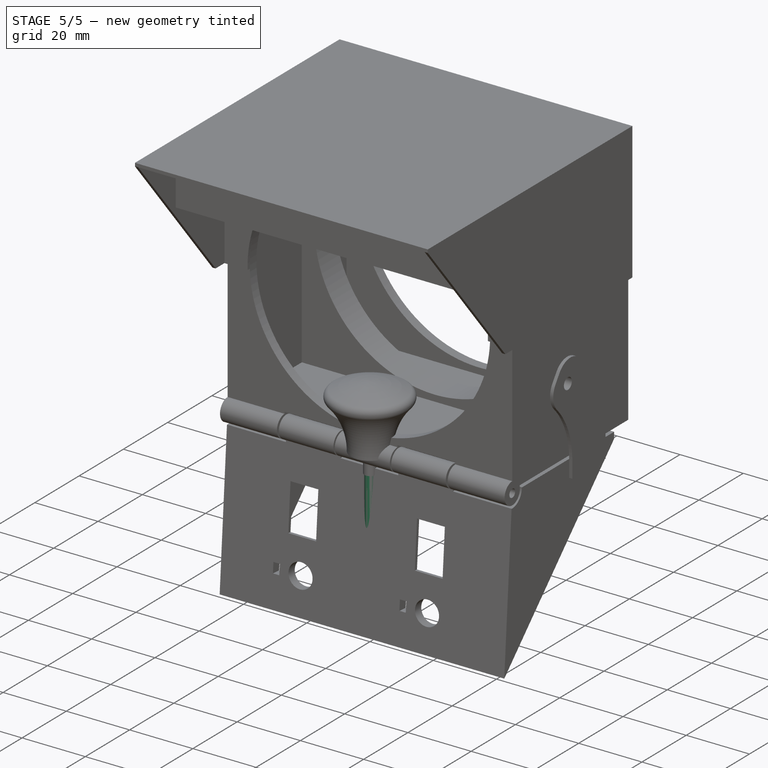
[diagram: stage 5 of 5 — iso view after this stage's code; geometry added in this stage tinted green]
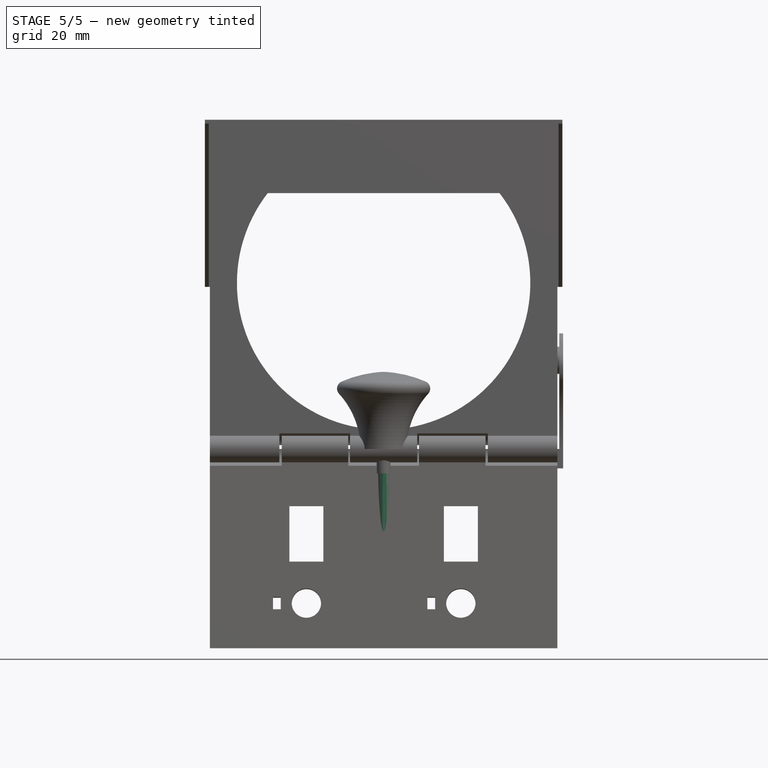
[diagram: stage 5 of 5 — front view after this stage's code; geometry added in this stage tinted green]
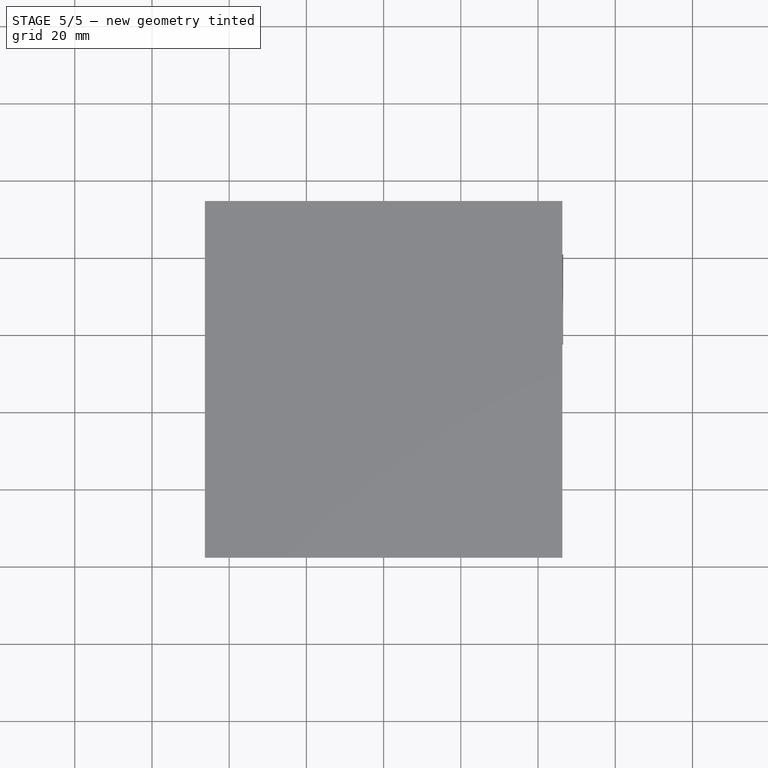
[diagram: stage 5 of 5 — top view after this stage's code; geometry added in this stage tinted green]
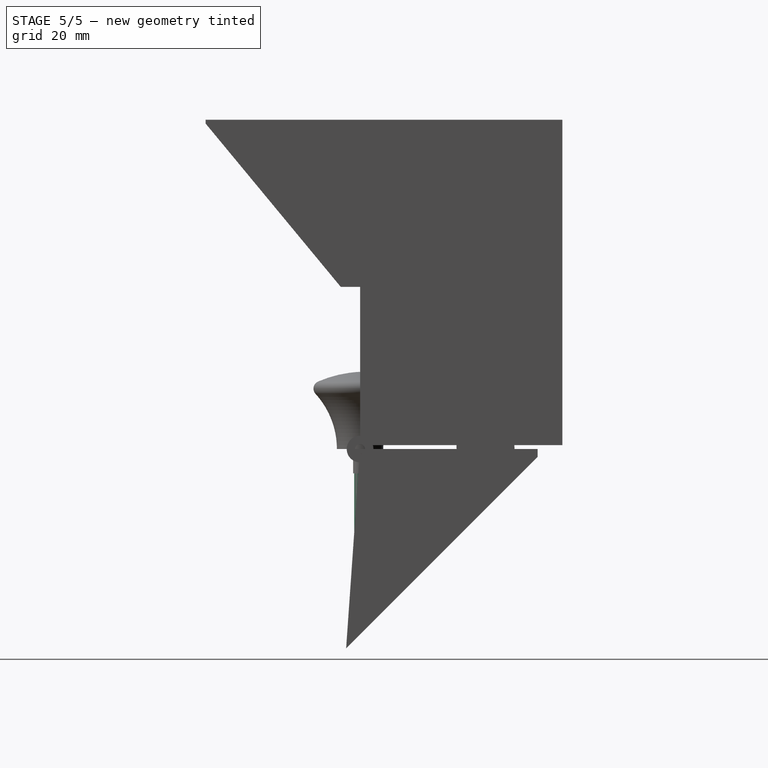
[diagram: stage 5 of 5 — right view after this stage's code; geometry added in this stage tinted green]
FEATURE [Spreadsheet::Sheet] Spreadsheet  label="fanSupMobSp"
  cells = A1=Internal name SpreadSheet; A2=larg; B2(larg)==<<fanSubSystemSp>>.larg; A3=ep; B3(ep)=3; A4=haut; B4(haut)=84; A5=prof; B5(prof)==<<fan80mm_sp>>.ep + filtreEp + 5 * ep + 4 * jeu; C5=fan80sp; A6=filtreEp; B6(filtreEp)=10; A7=jeu; B7(jeu)=0.6; A8=ecrouTrouPosY; B8(ecrouTrouPosY)==ep + <<fan80mm_sp>>.ep + jeu * 2 + ep; A9=ecrouTrouPosX; B9(ecrouTrouPosX)==<<fan80mm_sp>>.trouEntraxe / 2 - <<ecrouSp>>.hexLarg / 2 - jeu + ep; A10=ecrouTrouProf; B10(ecrouTrouProf)==larg - larg / 2 + larg / 2 - ep - <<fan80mm_sp>>.larg / 2 - <<fan80mm_sp>>.trouEntraxe / 2 + <<ecrouSp>>.grandeLong / 2 + jeu; A11=charnDiam; B11(charnDiam)=7.5; A12=charnAxeDiam; B12(charnAxeDiam)=2; A13=charnNbSeg; B13(charnNbSeg)=5; A14=charnLongSeg; B14(charnLongSeg)==larg / charnNbSeg; A15=piedTrouDiam; B15(piedTrouDiam)=3; A16=piedEp; B16(piedEp)=12; A17=piedR1; B17(piedR1)=25; A18=piedR2; B18(piedR2)==piedR1 + piedEp / 2; A19=piedR3; B19(piedR3)==piedR1 + piedEp; A20=piedCranAngle; B20(piedCranAngle)=15; A21=piedAngle1; B21(piedAngle1)==piedCranAngle; A22=piedAngle2; B22(piedAngle2)==piedAngle1 + piedCranAngle; A23=piedAngle3; B23(piedAngle3)==piedAngle2 + piedCranAngle; A24=piedAngle4; B24(piedAngle4)==piedAngle3 + piedCranAngle; A25=piedParroiAimantEp; B25(piedParroiAimantEp)=0.6; A26=troufilLEDPosX; B26(troufilLEDPosX)==larg / 2 - troufilLEDLarg - ep; A27=troufilLEDPosY; B27(troufilLEDPosY)==haut - troufilLEDHaut; A28=troufilLEDLarg; B28(troufilLEDLarg)=4; A29=troufilLEDHaut; B29(troufilLEDHaut)=2; A30=epSupprimee; B30(epSupprimee)=1; C30=1mm supprimé à la base de la partie mobil pour faciliter la charnière; A31=trouFixVentilDiam; B31(trouFixVentilDiam)=3.6; A32=planEcrouVentilo; B32(planEcrouVentilo)==<<fan80mm_sp>>.ep + 2 * jeu + 2 * ep; C32=fan80mm_sp
FEATURE [Spreadsheet::Sheet] Spreadsheet001  label="fan80mm_sp"
  cells = A1=ep; B1(ep)=25; A2=trouEntraxe; B2(trouEntraxe)=71.5; A3=trouDiam; B3(trouDiam)=4.3; A4=larg; B4(larg)=80; A5=trouFan; B5(trouFan)==larg - 2 * caseEp; A6=caseEp; B6(caseEp)=2
FEATURE [Part::Feature] Solid  label="80mm brushless fan (SUNON KDE1208PTB2)"
  Placement = pos=(0,0,40) rot=(-1,0,0;1.5708rad)
  shape: bbox 106.9 x 25.01 x 106.9 mm, 230 faces (baked)
FEATURE [App::Part] Part001  label="fan"
  Group = -> [Spreadsheet001,Solid]
  Origin = -> Origin002
  Placement = pos=(0,3,3) rot=(0,0,1;0rad)
FEATURE [Sketcher::SketchObject] Sketch
  FullyConstrained = true
  MapMode = 5
  Placement = pos=(0,0,0) rot=(0.57735,0.57735,0.57735;2.0944rad)
  Support = -> [YZ_Plane001]
  expr: Constraints[25] = <<fanSupMobSp>>.ep
  expr: Constraints[30] = <<fanSupMobSp>>.ep
  expr: Constraints[32] = <<fan80mm_sp>>.ep + 2 * <<fanSupMobSp>>.jeu
  expr: Constraints[33] = <<fanSupMobSp>>.ep * 3
  expr: Constraints[34] = <<fanSupMobSp>>.ep
  expr: Constraints[7] = <<fanSupMobSp>>.prof
  expr: Constraints[8] = <<fanSupMobSp>>.haut
  sketch-geometry (12):
    g0: LineSegment StartX=0 StartY=84 StartZ=0 EndX=3 EndY=84 EndZ=0
    g1: LineSegment StartX=3 StartY=84 StartZ=0 EndX=3 EndY=3 EndZ=0
    g2: LineSegment StartX=52.4 StartY=0 StartZ=0 EndX=0 EndY=0 EndZ=0
    g3: LineSegment StartX=0 StartY=0 StartZ=0 EndX=0 EndY=84 EndZ=0
    g4: LineSegment StartX=3 StartY=3 StartZ=0 EndX=29.2 EndY=3 EndZ=0
    g5: LineSegment StartX=29.2 StartY=3 StartZ=0 EndX=29.2 EndY=84 EndZ=0
    g6: LineSegment StartX=29.2 StartY=84 StartZ=0 EndX=38.2 EndY=84 EndZ=0
    g7: LineSegment StartX=38.2 StartY=84 StartZ=0 EndX=38.2 EndY=3 EndZ=0
    g8: LineSegment StartX=38.2 StartY=3 StartZ=0 EndX=49.4 EndY=3 EndZ=0
    g9: LineSegment StartX=49.4 StartY=3 StartZ=0 EndX=49.4 EndY=84 EndZ=0
    g10: LineSegment StartX=49.4 StartY=84 StartZ=0 EndX=52.4 EndY=84 EndZ=0
    g11: LineSegment StartX=52.4 StartY=84 StartZ=0 EndX=52.4 EndY=0 EndZ=0
  constraints (35):
    c: Horizontal(g0)
    c: Coincident(g0,g1)
    c: Vertical(g1)
    c: Horizontal(g2)
    c: Coincident(g2,g3)
    c: Coincident(g3,g0)
    c: Vertical(g3)
    c: DistanceX(g2,g2) = 52.4
    c: DistanceY(g3,g3) = 84
    c: Coincident(g-1,g2)
    c: Coincident(g1,g4)
    c: Horizontal(g4)
    c: Coincident(g4,g5)
    c: Vertical(g5)
    c: Coincident(g5,g6)
    c: Coincident(g6,g7)
    c: Vertical(g7)
    c: Coincident(g7,g8)
    c: Horizontal(g8)
    c: Coincident(g8,g9)
    c: Vertical(g9)
    c: Coincident(g9,g10)
    c: Coincident(g10,g11)
    c: Vertical(g11)
    c: Coincident(g11,g2)
    c: DistanceY(g2,g8) = 3
    c: Horizontal(g6)
    c: Horizontal(g10)
    c: Horizontal(g0,g5)
    c: Horizontal(g6,g9)
    c: DistanceX(g0,g0) = 3
    c: Horizontal(g4,g7)
    c: DistanceX(g4,g4) = 26.2
    c: DistanceX(g6,g6) = 9
    c: DistanceX(g10,g10) = 3
FEATURE [PartDesign::Pad] Pad
  Direction = (1,1,1)
  Length = 90
  Length2 = 100
  Midplane = true
  Placement = pos=(0,0,0) rot=(0.57735,0.57735,0.57735;2.0944rad)
  Profile = -> Sketch
  Type = 0
  expr: Length = <<fanSupMobSp>>.larg
FEATURE [Sketcher::SketchObject] Sketch001
  FullyConstrained = true
  MapMode = 5
  Placement = pos=(0,0,0) rot=(1,0,0;1.5708rad)
  Support = -> [XZ_Plane]
  expr: Constraints[1] = <<fan80mm_sp>>.trouFan
  expr: Constraints[2] = <<fanSupMobSp>>.ep + <<fan80mm_sp>>.trouFan / 2 + <<fan80mm_sp>>.caseEp
  sketch-geometry (1):
    g0: Circle CenterX=0 CenterY=43 CenterZ=0 NormalX=0 NormalY=0 NormalZ=1 AngleXU=0 Radius=38
  constraints (3):
    c: PointOnObject(g0,g-2)
    c: Diameter(g0) = 76
    c: DistanceY(g-1,g0) = 43
FEATURE [PartDesign::Pocket] Pocket  label="trousVentilo"
  BaseFeature = -> Pad
  Direction = (1,1,1)
  Length = 5
  Length2 = 100
  Placement = pos=(0,0,0) rot=(0.57735,0.57735,0.57735;2.0944rad)
  Profile = -> Sketch001
  Type = 1
FEATURE [PartDesign::Plane] DatumPlane  label="planSup"
  AttachmentOffset = pos=(0,0,84) rot=(0,0,1;0rad)
  Length = 60
  MapMode = 5
  Placement = pos=(0,0,84) rot=(0,0,1;0rad)
  ResizeMode = 0
  Support = -> [XY_Plane001]
  Width = 60
  expr: .AttachmentOffset.Base.z = <<fanSupMobSp>>.haut
FEATURE [Spreadsheet::Sheet] Spreadsheet002  label="ecrouSp"
  cells = A1=nom; B1(nom)=ecrouM3; A2=ep; B2(ep)=2.3; A3=hexLarg; B3(hexLarg)=5.5; A4=diam; B4(diam)=3; A5=grandeLong; B5(grandeLong)==1.15 * hexLarg
FEATURE [Sketcher::SketchObject] Sketch003
  FullyConstrained = true
  MapMode = 5
  Support = -> [XY_Plane004]
  expr: Constraints[19] = <<ecrouSp>>.hexLarg
  expr: Constraints[21] = <<ecrouSp>>.diam
  sketch-geometry (8):
    g0: LineSegment StartX=2.75 StartY=-1.58771 StartZ=0 EndX=2.75 EndY=1.58771 EndZ=0
    g1: LineSegment StartX=2.75 StartY=1.58771 StartZ=0 EndX=1.4686e-12 EndY=3.17543 EndZ=0
    g2: LineSegment StartX=1.4686e-12 StartY=3.17543 StartZ=0 EndX=-2.75 EndY=1.58771 EndZ=0
    g3: LineSegment StartX=-2.75 StartY=1.58771 StartZ=0 EndX=-2.75 EndY=-1.58771 EndZ=0
    g4: LineSegment StartX=-2.75 StartY=-1.58771 StartZ=0 EndX=1.469e-12 EndY=-3.17543 EndZ=0
    g5: LineSegment StartX=1.469e-12 StartY=-3.17543 StartZ=0 EndX=2.75 EndY=-1.58771 EndZ=0
    g6: Circle CenterX=0 CenterY=0 CenterZ=0 NormalX=0 NormalY=0 NormalZ=1 AngleXU=0 Radius=3.17543
    g7: Circle CenterX=0 CenterY=0 CenterZ=0 NormalX=0 NormalY=0 NormalZ=1 AngleXU=0 Radius=1.5
  constraints (18):
    c: Coincident(g0,g1)
    c: Coincident(g1,g2)
    c: Coincident(g2,g3)
    c: Coincident(g3,g4)
    c: Coincident(g4,g5)
    c: Coincident(g5,g0)
    c: Equal(g0, g1-g5) x5
    c: PointOnObject(g0,g6)
    c: PointOnObject(g1,g6)
    c: PointOnObject(g2,g6)
    c: PointOnObject(g3,g6)
    c: PointOnObject(g4,g6)
    c: PointOnObject(g5,g6)
    c: Coincident(g6,g-1)
    c: Vertical(g0)
    c: DistanceX(g3,g0) = 5.5
    c: Coincident(g7,g-1)
    c: Diameter(g7) = 3
FEATURE [PartDesign::Pad] Pad001
  Direction = (1,1,1)
  Length = 2.3
  Length2 = 100
  Midplane = true
  Profile = -> Sketch003
  Type = 0
  expr: Length = <<ecrouSp>>.ep
FEATURE [Sketcher::SketchObject] Sketch004
  FullyConstrained = true
  MapMode = 5
  Placement = pos=(0,0,0) rot=(0.57735,0.57735,0.57735;2.0944rad)
  Support = -> [YZ_Plane004]
  expr: Constraints[13] = <<ecrouSp>>.ep / 2
  expr: Constraints[15] = <<ecrouSp>>.hexLarg / 2
  expr: Constraints[17] = 3.5
  expr: Constraints[5] = <<ecrouSp>>.ep / 2
  expr: Constraints[6] = <<ecrouSp>>.hexLarg / 2
  sketch-geometry (6):
    g0: LineSegment StartX=-2.75 StartY=1.15 StartZ=0 EndX=-3.5 EndY=0.716987 EndZ=0
    g1: LineSegment StartX=-3.5 StartY=0.716987 StartZ=0 EndX=-3.5 EndY=1.15 EndZ=0
    g2: LineSegment StartX=-3.5 StartY=1.15 StartZ=0 EndX=-2.75 EndY=1.15 EndZ=0
    g3: LineSegment StartX=-2.75 StartY=-1.15 StartZ=0 EndX=-3.5 EndY=-0.716987 EndZ=0
    g4: LineSegment StartX=-3.5 StartY=-0.716987 StartZ=0 EndX=-3.5 EndY=-1.15 EndZ=0
    g5: LineSegment StartX=-3.5 StartY=-1.15 StartZ=0 EndX=-2.75 EndY=-1.15 EndZ=0
  constraints (18):
    c: Coincident(g0,g1)
    c: Vertical(g1)
    c: Coincident(g1,g2)
    c: Coincident(g2,g0)
    c: Horizontal(g2)
    c: DistanceY(g-1,g0) = 1.15
    c: DistanceX(g0,g-1) = 2.75
    c: Angle(g2,g0) = 0.523599
    c: Coincident(g3,g4)
    c: Vertical(g4)
    c: Coincident(g4,g5)
    c: Horizontal(g5)
    c: Coincident(g5,g3)
    c: DistanceY(g3,g-1) = 1.15
    c: Angle(g3,g5) = 0.523599
    c: DistanceX(g3,g-1) = 2.75
    c: Vertical(g0,g3)
    c: DistanceX(g0,g-1) = 3.5
FEATURE [PartDesign::Groove] Groove
  Angle = 360
  Axis = (-2e-16,3e-16,1)
  Base = (0,0,0)
  BaseFeature = -> Pad001
  Profile = -> Sketch004
  ReferenceAxis = -> Sketch004 [V_Axis]
  Reversed = true
FEATURE [Sketcher::SketchObject] Sketch006
  FullyConstrained = false
  MapMode = 5
  Support = -> [XY_Plane005]
  sketch-geometry (1):
    g0: Circle CenterX=0 CenterY=0 CenterZ=0 NormalX=0 NormalY=0 NormalZ=1 AngleXU=0 Radius=2.75
  constraints (2):
    c: Coincident(g0,g-1)
    c: Diameter(g0) = 5.5
FEATURE [PartDesign::Pad] Pad002  label="tete"
  AllowMultiFace = false
  Direction = (1,1,1)
  Length = 3
  Length2 = 100
  Profile = -> Sketch006
  Type = 0
FEATURE [Sketcher::SketchObject] Sketch007
  FullyConstrained = false
  MapMode = 5
  Placement = pos=(0,0,0) rot=(1,0,0;3.14159rad)
  Support = -> [Pad002]
  sketch-geometry (1):
    g0: Circle CenterX=0 CenterY=0 CenterZ=0 NormalX=0 NormalY=0 NormalZ=1 AngleXU=0 Radius=1.5
  constraints (2):
    c: Coincident(g0,g-1)
    c: Diameter(g0) = 3
FEATURE [PartDesign::Pad] Pad003  label="corps"
  AllowMultiFace = false
  BaseFeature = -> Pad002
  Direction = (1,1,1)
  Length = 40
  Length2 = 100
  Profile = -> Sketch007
  Type = 0
FEATURE [PartDesign::Plane] DatumPlane001  label="DatumPlane"
  AttachmentOffset = pos=(0,0,3) rot=(0,0,1;0rad)
  Length = 60
  MapMode = 5
  Placement = pos=(0,0,3) rot=(0,0,1;0rad)
  ResizeMode = 0
  Support = -> [XY_Plane005]
  Width = 60
FEATURE [Sketcher::SketchObject] Sketch008
  FullyConstrained = true
  MapMode = 5
  Placement = pos=(0,0,3) rot=(0,0,1;0rad)
  Support = -> [DatumPlane001]
  sketch-geometry (7):
    g0: LineSegment StartX=0.721688 StartY=-1.25 StartZ=0 EndX=1.44338 EndY=1.0119e-12 EndZ=0
    g1: LineSegment StartX=1.44338 StartY=1.0119e-12 StartZ=0 EndX=0.721688 EndY=1.25 EndZ=0
    g2: LineSegment StartX=0.721688 StartY=1.25 StartZ=0 EndX=-0.721688 EndY=1.25 EndZ=0
    g3: LineSegment StartX=-0.721688 StartY=1.25 StartZ=0 EndX=-1.44338 EndY=8.689e-13 EndZ=0
    g4: LineSegment StartX=-1.44338 StartY=8.689e-13 StartZ=0 EndX=-0.721688 EndY=-1.25 EndZ=0
    g5: LineSegment StartX=-0.721688 StartY=-1.25 StartZ=0 EndX=0.721688 EndY=-1.25 EndZ=0
    g6: Circle CenterX=0 CenterY=0 CenterZ=0 NormalX=0 NormalY=0 NormalZ=1 AngleXU=0 Radius=1.44338
  constraints (16):
    c: Coincident(g0,g1)
    c: Coincident(g1,g2)
    c: Coincident(g2,g3)
    c: Coincident(g3,g4)
    c: Coincident(g4,g5)
    c: Coincident(g5,g0)
    c: Equal(g0, g1-g5) x5
    c: PointOnObject(g0,g6)
    c: PointOnObject(g1,g6)
    c: PointOnObject(g2,g6)
    c: PointOnObject(g3,g6)
    c: PointOnObject(g4,g6)
    c: PointOnObject(g5,g6)
    c: Coincident(g6,g-1)
    c: Horizontal(g2)
    c: DistanceY(g0,g1) = 2.5
FEATURE [PartDesign::Pocket] Pocket003  label="emprunte"
  AllowMultiFace = false
  BaseFeature = -> Pad003
  Direction = (1,1,1)
  Length = 4
  Length2 = 100
  Profile = -> Sketch008
  Type = 0
FEATURE [PartDesign::Chamfer] Chamfer001
  Angle = 45
  Base = -> Pocket003 [Edge12,Edge2,Edge3]
  BaseFeature = -> Pocket003
  ChamferType = 0
  FlipDirection = false
  Size = 0.2
  Size2 = 1
  SupportTransform = false
  UseAllEdges = false
FEATURE [PartDesign::Body] Body002  label="visTHCM3x40_001"
  Group = -> [Sketch006,Pad002,Sketch007,Pad003,DatumPlane001,Sketch008,Pocket003,Chamfer001]
  Origin = -> Origin005
  Placement = pos=(35.8,-1.7e-14,78.7) rot=(1,0,0;1.5708rad)
  Tip = -> Chamfer001
FEATURE [Sketcher::SketchObject] Sketch009
  FullyConstrained = false
  MapMode = 5
  Support = -> [XY_Plane006]
  sketch-geometry (1):
    g0: Circle CenterX=0 CenterY=0 CenterZ=0 NormalX=0 NormalY=0 NormalZ=1 AngleXU=0 Radius=2.75
  constraints (2):
    c: Coincident(g0,g-1)
    c: Diameter(g0) = 5.5
FEATURE [PartDesign::Pad] Pad005  label="tete001"
  AllowMultiFace = false
  Direction = (1,1,1)
  Length = 3
  Length2 = 100
  Profile = -> Sketch009
  Type = 0
FEATURE [Sketcher::SketchObject] Sketch010
  FullyConstrained = false
  MapMode = 5
  Placement = pos=(0,0,0) rot=(1,0,0;3.14159rad)
  Support = -> [Pad005]
  sketch-geometry (1):
    g0: Circle CenterX=0 CenterY=0 CenterZ=0 NormalX=0 NormalY=0 NormalZ=1 AngleXU=0 Radius=1.5
  constraints (2):
    c: Coincident(g0,g-1)
    c: Diameter(g0) = 3
FEATURE [PartDesign::Pad] Pad004  label="corps001"
  AllowMultiFace = false
  BaseFeature = -> Pad005
  Direction = (1,1,1)
  Length = 40
  Length2 = 100
  Profile = -> Sketch010
  Type = 0
FEATURE [PartDesign::Plane] DatumPlane002
  AttachmentOffset = pos=(0,0,3) rot=(0,0,1;0rad)
  Length = 60
  MapMode = 5
  Placement = pos=(0,0,3) rot=(0,0,1;0rad)
  ResizeMode = 0
  Support = -> [XY_Plane006]
  Width = 60
FEATURE [Sketcher::SketchObject] Sketch011
  FullyConstrained = true
  MapMode = 5
  Placement = pos=(0,0,3) rot=(0,0,1;0rad)
  Support = -> [DatumPlane002]
  sketch-geometry (7):
    g0: LineSegment StartX=0.721688 StartY=-1.25 StartZ=0 EndX=1.44338 EndY=1.0119e-12 EndZ=0
    g1: LineSegment StartX=1.44338 StartY=1.0119e-12 StartZ=0 EndX=0.721688 EndY=1.25 EndZ=0
    g2: LineSegment StartX=0.721688 StartY=1.25 StartZ=0 EndX=-0.721688 EndY=1.25 EndZ=0
    g3: LineSegment StartX=-0.721688 StartY=1.25 StartZ=0 EndX=-1.44338 EndY=8.689e-13 EndZ=0
    g4: LineSegment StartX=-1.44338 StartY=8.689e-13 StartZ=0 EndX=-0.721688 EndY=-1.25 EndZ=0
    g5: LineSegment StartX=-0.721688 StartY=-1.25 StartZ=0 EndX=0.721688 EndY=-1.25 EndZ=0
    g6: Circle CenterX=0 CenterY=0 CenterZ=0 NormalX=0 NormalY=0 NormalZ=1 AngleXU=0 Radius=1.44338
  constraints (16):
    c: Coincident(g0,g1)
    c: Coincident(g1,g2)
    c: Coincident(g2,g3)
    c: Coincident(g3,g4)
    c: Coincident(g4,g5)
    c: Coincident(g5,g0)
    c: Equal(g0, g1-g5) x5
    c: PointOnObject(g0,g6)
    c: PointOnObject(g1,g6)
    c: PointOnObject(g2,g6)
    c: PointOnObject(g3,g6)
    c: PointOnObject(g4,g6)
    c: PointOnObject(g5,g6)
    c: Coincident(g6,g-1)
    c: Horizontal(g2)
    c: DistanceY(g0,g1) = 2.5
FEATURE [PartDesign::Pocket] Pocket004  label="emprunte001"
  AllowMultiFace = false
  BaseFeature = -> Pad004
  Direction = (1,1,1)
  Length = 4
  Length2 = 100
  Profile = -> Sketch011
  Type = 0
FEATURE [PartDesign::Chamfer] Chamfer002
  Angle = 45
  Base = -> Pocket004 [Edge12,Edge2,Edge3]
  BaseFeature = -> Pocket004
  ChamferType = 0
  FlipDirection = false
  Size = 0.2
  Size2 = 1
  SupportTransform = false
  UseAllEdges = false
FEATURE [Sketcher::SketchObject] Sketch001
  FullyConstrained = true
  MapMode = 5
  Support = -> [XY_Plane001]
  expr: Constraints[10] = <<sw15x10Sp>>.LevreLarg
  expr: Constraints[9] = <<sw15x10Sp>>.levreLong
  sketch-geometry (4):
    g0: LineSegment StartX=-7.55 StartY=5.25 StartZ=0 EndX=7.55 EndY=5.25 EndZ=0
    g1: LineSegment StartX=7.55 StartY=5.25 StartZ=0 EndX=7.55 EndY=-5.25 EndZ=0
    g2: LineSegment StartX=7.55 StartY=-5.25 StartZ=0 EndX=-7.55 EndY=-5.25 EndZ=0
    g3: LineSegment StartX=-7.55 StartY=-5.25 StartZ=0 EndX=-7.55 EndY=5.25 EndZ=0
  constraints (11):
    c: Coincident(g0,g1)
    c: Coincident(g1,g2)
    c: Coincident(g2,g3)
    c: Coincident(g3,g0)
    c: Horizontal(g0)
    c: Horizontal(g2)
    c: Vertical(g1)
    c: Vertical(g3)
    c: Symmetric(g0,g1,g-1)
    c: DistanceX(g0,g0) = 15.1
    c: DistanceY(g1,g1) = 10.5
FEATURE [PartDesign::Pad] Pad001
  BaseFeature = -> Pad
  Direction = (1,1,1)
  Length = 1.4
  Length2 = 100
  Profile = -> Sketch001
  Type = 0
  expr: Length = <<sw15x10Sp>>.levreEp
FEATURE [PartDesign::Chamfer] Chamfer
  Angle = 45
  Base = -> Pad001 [Edge7,Edge4,Edge10,Edge16]
  BaseFeature = -> Pad001
  ChamferType = 0
  FlipDirection = false
  Size = 1
  Size2 = 1
  SupportTransform = false
FEATURE [Sketcher::SketchObject] Sketch002
  FullyConstrained = true
  MapMode = 5
  Placement = pos=(0,0,0) rot=(1,0,0;1.5708rad)
  Support = -> [XZ_Plane001]
  expr: Constraints[2] = <<sw15x10Sp>>.long - 2
  expr: Constraints[1] = <<sw15x10Sp>>.levreEp
  sketch-geometry (3):
    g0: LineSegment StartX=-5.5 StartY=1.4 StartZ=0 EndX=5.5 EndY=1.4 EndZ=0
    g1: ArcOfCircle CenterX=0.849908 CenterY=0.170661 CenterZ=0 NormalX=0 NormalY=0 NormalZ=1 AngleXU=0 Radius=4.80985 StartAngle=0.258456 EndAngle=1.1671
    g2: ArcOfCircle CenterX=-5.5 CenterY=13.6245 CenterZ=0 NormalX=0 NormalY=0 NormalZ=1 AngleXU=0 Radius=12.2245 StartAngle=4.71239 EndAngle=5.452
  constraints (9):
    c: Symmetric(g0,g0,g-2)
    c: DistanceY(g-1,g0) = 1.4
    c: DistanceX(g0,g0) = 11
    c: Coincident(g1,g0)
    c: Tangent(g2,g0) = -1.5708
    c: Coincident(g1,g2)
    c: DistanceY(g2) = 13.6245
    c: DistanceX(g1) = 0.849908
    c: DistanceY(g1) = 0.170661
FEATURE [PartDesign::Pad] Pad002
  BaseFeature = -> Chamfer
  Direction = (1,1,1)
  Length = 6
  Length2 = 100
  Midplane = true
  Profile = -> Sketch002
  Type = 0
FEATURE [PartDesign::Plane] DatumPlane  label="planCosses"
  AttachmentOffset = pos=(0,0,-8.3) rot=(0,0,1;0rad)
  Length = 60
  MapMode = 5
  Placement = pos=(0,0,-8.3) rot=(0,0,1;0rad)
  ResizeMode = 0
  Support = -> [XY_Plane001]
  Width = 60
  expr: .AttachmentOffset.Base.z = -<<sw15x10Sp>>.haut
FEATURE [Sketcher::SketchObject] Sketch003
  FullyConstrained = true
  MapMode = 5
  Placement = pos=(0,0,-8.3) rot=(0,0,1;0rad)
  Support = -> [DatumPlane]
  expr: Constraints[24] = <<sw15x10Sp>>.long / 2 - <<sw15x10Sp>>.cosseDistBord - <<sw15x10Sp>>.cosseEp
  expr: Constraints[22] = <<sw15x10Sp>>.cosseLarg
  expr: Constraints[21] = <<sw15x10Sp>>.cosseEntraxe
  expr: Constraints[20] = <<sw15x10Sp>>.cosseEp
  sketch-geometry (9):
    g0: LineSegment StartX=3.87 StartY=1.85 StartZ=0 EndX=4.2 EndY=1.85 EndZ=0
    g1: LineSegment StartX=4.2 StartY=1.85 StartZ=0 EndX=4.2 EndY=-1.85 EndZ=0
    g2: LineSegment StartX=4.2 StartY=-1.85 StartZ=0 EndX=3.87 EndY=-1.85 EndZ=0
    g3: LineSegment StartX=3.87 StartY=-1.85 StartZ=0 EndX=3.87 EndY=1.85 EndZ=0
    g4: LineSegment StartX=-1.06 StartY=1.85 StartZ=0 EndX=-0.73 EndY=1.85 EndZ=0
    g5: LineSegment StartX=-0.73 StartY=1.85 StartZ=0 EndX=-0.73 EndY=-1.85 EndZ=0
    g6: LineSegment StartX=-0.73 StartY=-1.85 StartZ=0 EndX=-1.06 EndY=-1.85 EndZ=0
    g7: LineSegment StartX=-1.06 StartY=-1.85 StartZ=0 EndX=-1.06 EndY=1.85 EndZ=0
    g8: LineSegment StartX=-0.73 StartY=1.85 StartZ=0 EndX=3.87 EndY=1.85 EndZ=0
  constraints (25):
    c: Coincident(g0,g1)
    c: Coincident(g1,g2)
    c: Coincident(g2,g3)
    c: Coincident(g3,g0)
    c: Horizontal(g0)
    c: Horizontal(g2)
    c: Vertical(g3)
    c: Coincident(g4,g5)
    c: Coincident(g5,g6)
    c: Coincident(g6,g7)
    c: Coincident(g7,g4)
    c: Horizontal(g4)
    c: Horizontal(g6)
    c: Vertical(g5)
    c: Vertical(g7)
    c: Equal(g5,g3)
    c: Equal(g4,g0)
    c: Coincident(g8,g4)
    c: Coincident(g8,g0)
    c: Horizontal(g8)
    c: DistanceX(g0,g0) = 0.33
    c: DistanceX(g8,g8) = 4.6
    c: DistanceY(g1,g1) = 3.7
    c: Symmetric(g1,g0,g-1)
    c: DistanceX(g-1,g2) = 3.87
FEATURE [PartDesign::Pad] Pad003  label="cossesBase"
  BaseFeature = -> Fillet
  Direction = (1,1,1)
  Length = 6.65
  Length2 = 100
  Profile = -> Sketch003
  Reversed = true
  Type = 0
  expr: Length = <<sw15x10Sp>>.cosseHaut
FEATURE [PartDesign::Chamfer] Chamfer001  label="chanfreinCosse"
  Angle = 45
  Base = -> Pad003 [Edge59,Edge55,Edge63,Edge67]
  BaseFeature = -> Pad003
  ChamferType = 0
  FlipDirection = false
  Size = 1.5
  Size2 = 1
  SupportTransform = false
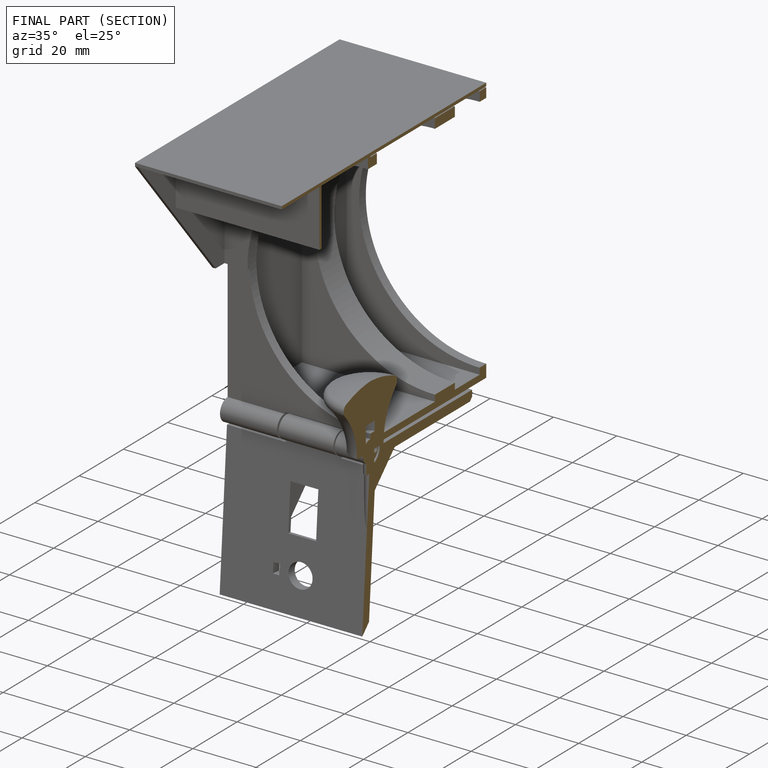
[diagram: finished part — half-section view (interior)]
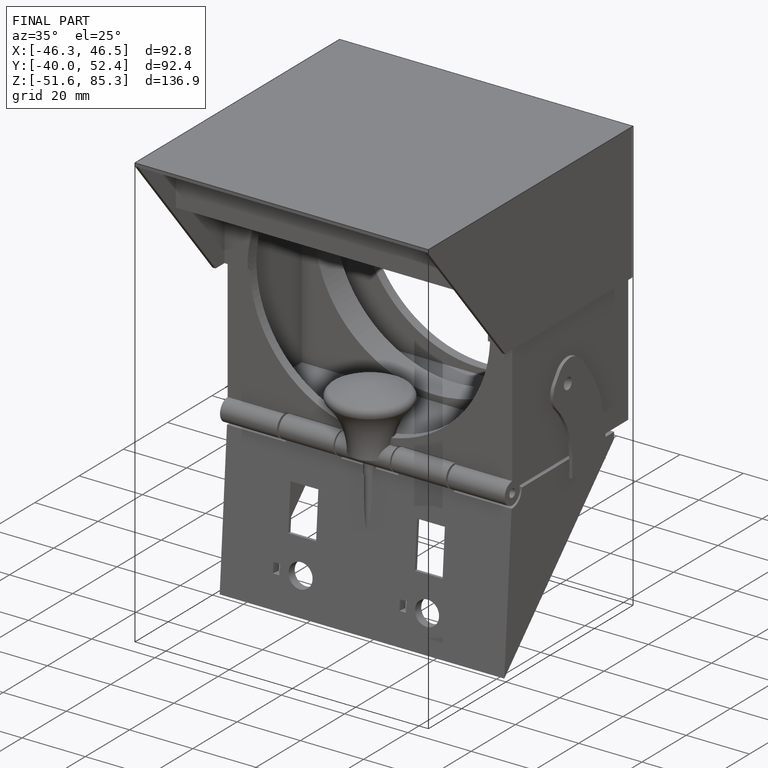
[diagram: finished part — iso view with bounding-box wireframe]
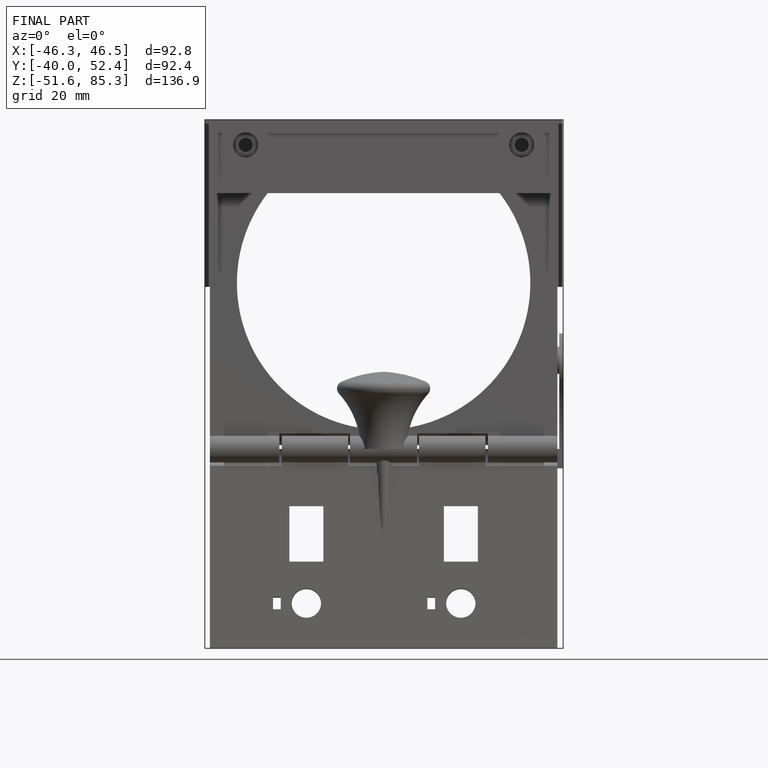
[diagram: finished part — front view with bounding-box wireframe]
